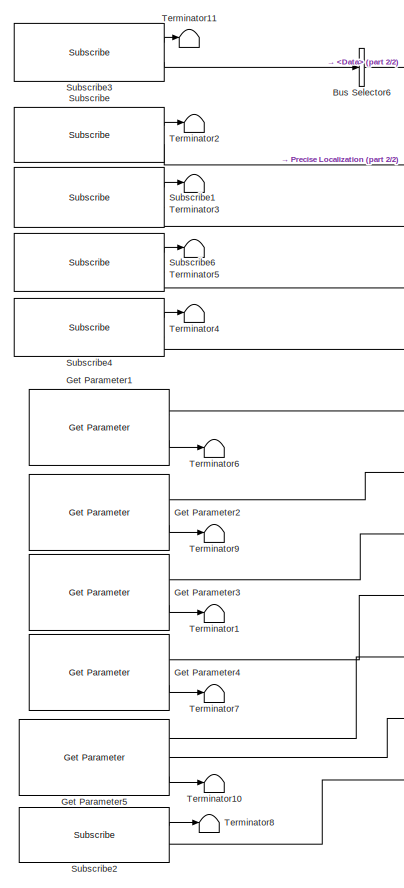
[diagram: root canvas - part 1/2, left side, full height]
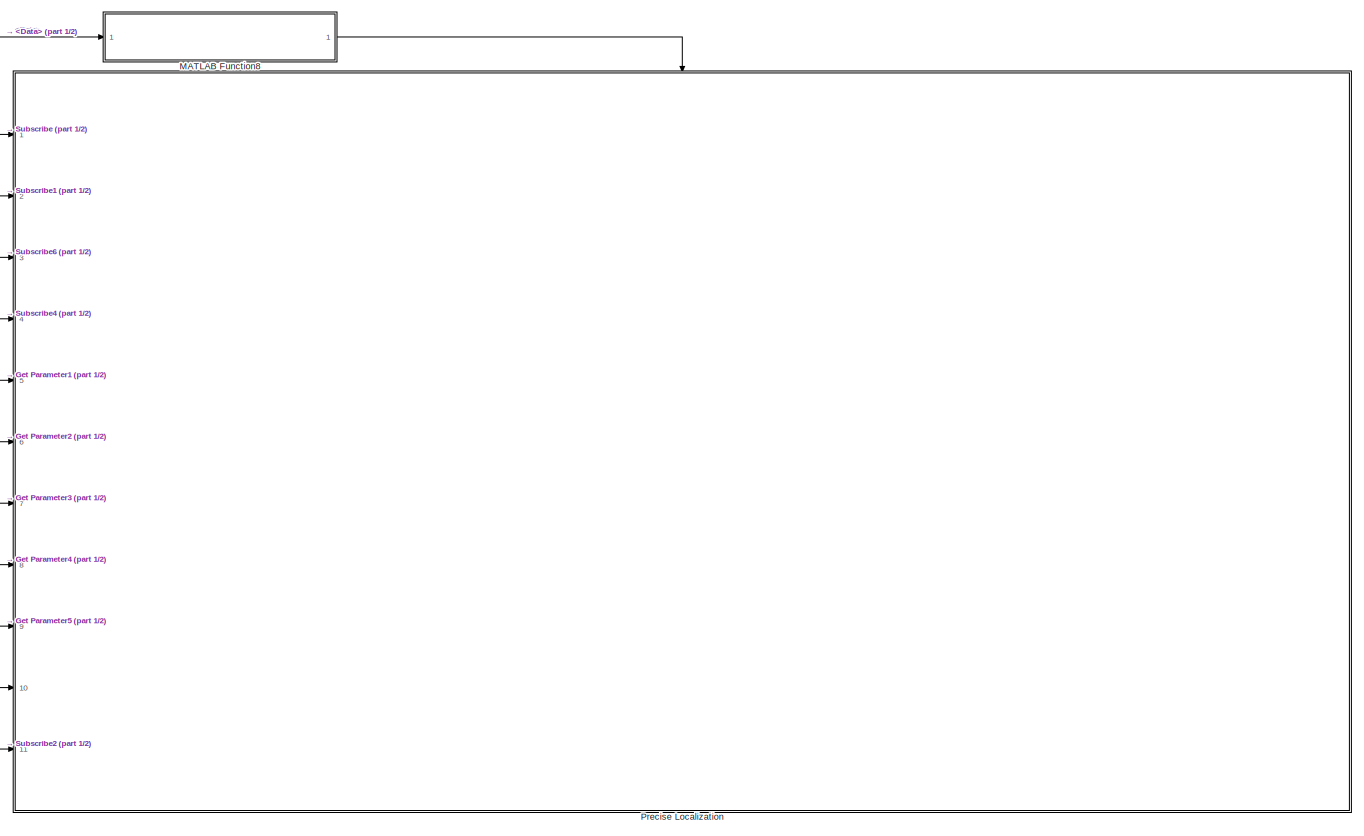
[diagram: root canvas - part 2/2, most of the canvas]
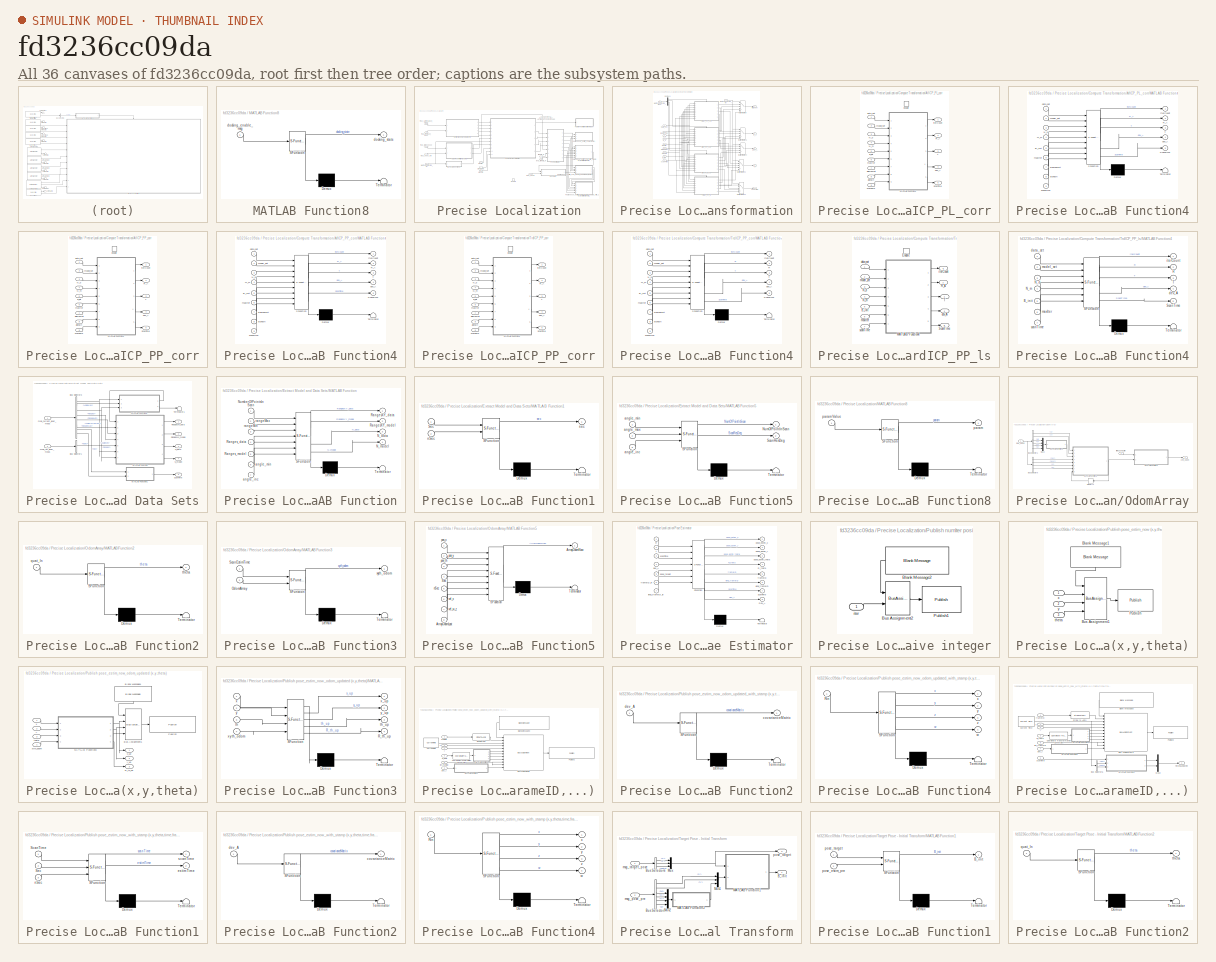
[diagram: thumbnail index - all 36 canvases of the model, root first then tree order]
MODEL slx_fd3236cc09da
KIND model
CONFIG AbsTol = auto
CONFIG EnableMultiTasking = off
CONFIG FixedStep = auto
CONFIG MaxStep = auto
CONFIG MinStep = auto
CONFIG RelTol = 1e-3
CONFIG SampleTimeConstraint = Unconstrained
CONFIG SolverName = FixedStepAuto
CONFIG StartTime = 0.0
CONFIG StopTime = inf
WORKSPACE source: mxarray member
WORKSPACE SL_ROS_VariableLengthArrays_MaxSizes: object (value not decoded)
BLOCK [BusSelector] Bus Selector6
  OutputSignals = Data
  Ports = [1, 1]
BLOCK [Reference] Get Parameter1  REF=robotlib/Get Parameter
  Ports = [0, 2]
  SourceBlock = robotlib/Get Parameter
  SourceProductBaseCode = RR
  SourceType = ROS Get Parameter
BLOCK [Reference] Get Parameter2  REF=robotlib/Get Parameter
  Ports = [0, 2]
  SourceBlock = robotlib/Get Parameter
  SourceProductBaseCode = RR
  SourceType = ROS Get Parameter
BLOCK [Reference] Get Parameter3  REF=robotlib/Get Parameter
  Ports = [0, 2]
  SourceBlock = robotlib/Get Parameter
  SourceProductBaseCode = RR
  SourceType = ROS Get Parameter
BLOCK [Reference] Get Parameter4  REF=robotlib/Get Parameter
  Ports = [0, 2]
  SourceBlock = robotlib/Get Parameter
  SourceProductBaseCode = RR
  SourceType = ROS Get Parameter
BLOCK [Reference] Get Parameter5  REF=robotlib/Get Parameter
  Ports = [0, 3]
  SourceBlock = robotlib/Get Parameter
  SourceProductBaseCode = RR
  SourceType = ROS Get Parameter
BLOCK [SubSystem] MATLAB Function8
  ErrorFcn = Stateflow.Translate.translate
  PermitHierarchicalResolution = ExplicitOnly
  Ports = [1, 1]
  RequestExecContextInheritance = off
  SFBlockType = MATLAB Function
  TreatAsAtomicUnit = on
BLOCK [Demux] MATLAB Function8/ Demux 
  Outputs = 1
  Ports = [1, 1]
BLOCK [S-Function] MATLAB Function8/ SFunction 
  EnableBusSupport = on
  FunctionName = sf_sfun
  PortCounts = [1 2]
  Ports = [1, 2]
  SFcnIsStateOwnerBlock = off
  SFunctionDeploymentMode = off
  Tag = Stateflow S-Function 21
BLOCK [Terminator] MATLAB Function8/ Terminator 
BLOCK [Inport] MATLAB Function8/docking_enable_msg
BLOCK [Outport] MATLAB Function8/docking_state
  VectorParamsAs1DForOutWhenUnconnected = off
BLOCK [SubSystem] Precise Localization
  Ports = [11, 0, 1]
  RequestExecContextInheritance = off
BLOCK [SubSystem] Precise Localization/Compute Transformation
  Ports = [11, 5]
  RequestExecContextInheritance = off
BLOCK [SubSystem] Precise Localization/Compute Transformation/AfICP_PL_corr
  Ports = [9, 5, 1]
  RequestExecContextInheritance = off
  TreatAsAtomicUnit = on
BLOCK [Inport] Precise Localization/Compute Transformation/AfICP_PL_corr/B_init
  Port = 5
BLOCK [EnablePort] Precise Localization/Compute Transformation/AfICP_PL_corr/Enable
  Ports = []
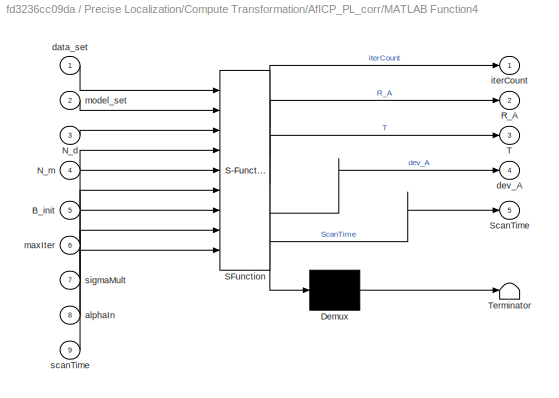
BLOCK [SubSystem] Precise Localization/Compute Transformation/AfICP_PL_corr/MATLAB Function4
  ErrorFcn = Stateflow.Translate.translate
  PermitHierarchicalResolution = ExplicitOnly
  Ports = [9, 5]
  RequestExecContextInheritance = off
  SFBlockType = MATLAB Function
  TreatAsAtomicUnit = on
BLOCK [Demux] Precise Localization/Compute Transformation/AfICP_PL_corr/MATLAB Function4/ Demux 
  Outputs = 1
  Ports = [1, 1]
BLOCK [S-Function] Precise Localization/Compute Transformation/AfICP_PL_corr/MATLAB Function4/ SFunction 
  EnableBusSupport = on
  FunctionName = sf_sfun
  PortCounts = [9 6]
  Ports = [9, 6]
  SFcnIsStateOwnerBlock = off
  SFunctionDeploymentMode = off
  Tag = Stateflow S-Function 10
BLOCK [Terminator] Precise Localization/Compute Transformation/AfICP_PL_corr/MATLAB Function4/ Terminator 
BLOCK [Inport] Precise Localization/Compute Transformation/AfICP_PL_corr/MATLAB Function4/B_init
  Port = 5
BLOCK [Inport] Precise Localization/Compute Transformation/AfICP_PL_corr/MATLAB Function4/N_d
  Port = 3
BLOCK [Inport] Precise Localization/Compute Transformation/AfICP_PL_corr/MATLAB Function4/N_m
  Port = 4
BLOCK [Outport] Precise Localization/Compute Transformation/AfICP_PL_corr/MATLAB Function4/R_A
  Port = 2
  VectorParamsAs1DForOutWhenUnconnected = off
BLOCK [Outport] Precise Localization/Compute Transformation/AfICP_PL_corr/MATLAB Function4/ScanTime
  Port = 5
BLOCK [Outport] Precise Localization/Compute Transformation/AfICP_PL_corr/MATLAB Function4/T
  Port = 3
  VectorParamsAs1DForOutWhenUnconnected = off
BLOCK [Inport] Precise Localization/Compute Transformation/AfICP_PL_corr/MATLAB Function4/alphaIn
  Port = 8
BLOCK [Inport] Precise Localization/Compute Transformation/AfICP_PL_corr/MATLAB Function4/data_set
BLOCK [Outport] Precise Localization/Compute Transformation/AfICP_PL_corr/MATLAB Function4/dev_A
  Port = 4
BLOCK [Outport] Precise Localization/Compute Transformation/AfICP_PL_corr/MATLAB Function4/iterCount
  VectorParamsAs1DForOutWhenUnconnected = off
BLOCK [Inport] Precise Localization/Compute Transformation/AfICP_PL_corr/MATLAB Function4/maxIter
  Port = 6
BLOCK [Inport] Precise Localization/Compute Transformation/AfICP_PL_corr/MATLAB Function4/model_set
  Port = 2
BLOCK [Inport] Precise Localization/Compute Transformation/AfICP_PL_corr/MATLAB Function4/scanTime
  Port = 9
BLOCK [Inport] Precise Localization/Compute Transformation/AfICP_PL_corr/MATLAB Function4/sigmaMult
  Port = 7
BLOCK [Inport] Precise Localization/Compute Transformation/AfICP_PL_corr/N_d
  Port = 3
BLOCK [Inport] Precise Localization/Compute Transformation/AfICP_PL_corr/N_m
  Port = 4
BLOCK [Outport] Precise Localization/Compute Transformation/AfICP_PL_corr/R_A
  Port = 2
BLOCK [Outport] Precise Localization/Compute Transformation/AfICP_PL_corr/ScanTime
  Port = 5
BLOCK [Inport] Precise Localization/Compute Transformation/AfICP_PL_corr/SigmaMult
  Port = 7
BLOCK [Outport] Precise Localization/Compute Transformation/AfICP_PL_corr/T
  Port = 3
BLOCK [Inport] Precise Localization/Compute Transformation/AfICP_PL_corr/alphaIn
  Port = 8
BLOCK [Inport] Precise Localization/Compute Transformation/AfICP_PL_corr/data_set
BLOCK [Outport] Precise Localization/Compute Transformation/AfICP_PL_corr/dev_A
  Port = 4
BLOCK [Outport] Precise Localization/Compute Transformation/AfICP_PL_corr/iterCount
BLOCK [Inport] Precise Localization/Compute Transformation/AfICP_PL_corr/maxIter
  Port = 6
BLOCK [Inport] Precise Localization/Compute Transformation/AfICP_PL_corr/model_set
  Port = 2
BLOCK [Inport] Precise Localization/Compute Transformation/AfICP_PL_corr/scanTime
  Port = 9
BLOCK [SubSystem] Precise Localization/Compute Transformation/AfICP_PP_corr
  Ports = [9, 5, 1]
  RequestExecContextInheritance = off
  TreatAsAtomicUnit = on
BLOCK [Inport] Precise Localization/Compute Transformation/AfICP_PP_corr/B_init
  Port = 5
BLOCK [EnablePort] Precise Localization/Compute Transformation/AfICP_PP_corr/Enable
  Ports = []
BLOCK [SubSystem] Precise Localization/Compute Transformation/AfICP_PP_corr/MATLAB Function4
  ErrorFcn = Stateflow.Translate.translate
  PermitHierarchicalResolution = ExplicitOnly
  Ports = [9, 5]
  RequestExecContextInheritance = off
  SFBlockType = MATLAB Function
  TreatAsAtomicUnit = on
BLOCK [Demux] Precise Localization/Compute Transformation/AfICP_PP_corr/MATLAB Function4/ Demux 
  Outputs = 1
  Ports = [1, 1]
BLOCK [S-Function] Precise Localization/Compute Transformation/AfICP_PP_corr/MATLAB Function4/ SFunction 
  EnableBusSupport = on
  FunctionName = sf_sfun
  PortCounts = [9 6]
  Ports = [9, 6]
  SFcnIsStateOwnerBlock = off
  SFunctionDeploymentMode = off
  Tag = Stateflow S-Function 7
BLOCK [Terminator] Precise Localization/Compute Transformation/AfICP_PP_corr/MATLAB Function4/ Terminator 
BLOCK [Inport] Precise Localization/Compute Transformation/AfICP_PP_corr/MATLAB Function4/B_init
  Port = 5
BLOCK [Inport] Precise Localization/Compute Transformation/AfICP_PP_corr/MATLAB Function4/N_d
  Port = 3
BLOCK [Inport] Precise Localization/Compute Transformation/AfICP_PP_corr/MATLAB Function4/N_m
  Port = 4
BLOCK [Outport] Precise Localization/Compute Transformation/AfICP_PP_corr/MATLAB Function4/R_A
  Port = 2
  VectorParamsAs1DForOutWhenUnconnected = off
BLOCK [Outport] Precise Localization/Compute Transformation/AfICP_PP_corr/MATLAB Function4/ScanTime
  Port = 5
BLOCK [Outport] Precise Localization/Compute Transformation/AfICP_PP_corr/MATLAB Function4/T
  Port = 3
  VectorParamsAs1DForOutWhenUnconnected = off
BLOCK [Inport] Precise Localization/Compute Transformation/AfICP_PP_corr/MATLAB Function4/alphaIn
  Port = 8
BLOCK [Inport] Precise Localization/Compute Transformation/AfICP_PP_corr/MATLAB Function4/data_set
BLOCK [Outport] Precise Localization/Compute Transformation/AfICP_PP_corr/MATLAB Function4/dev_A
  Port = 4
BLOCK [Outport] Precise Localization/Compute Transformation/AfICP_PP_corr/MATLAB Function4/iterCount
  VectorParamsAs1DForOutWhenUnconnected = off
BLOCK [Inport] Precise Localization/Compute Transformation/AfICP_PP_corr/MATLAB Function4/maxIter
  Port = 6
BLOCK [Inport] Precise Localization/Compute Transformation/AfICP_PP_corr/MATLAB Function4/model_set
  Port = 2
BLOCK [Inport] Precise Localization/Compute Transformation/AfICP_PP_corr/MATLAB Function4/scanTime
  Port = 9
BLOCK [Inport] Precise Localization/Compute Transformation/AfICP_PP_corr/MATLAB Function4/sigmaMult
  Port = 7
BLOCK [Inport] Precise Localization/Compute Transformation/AfICP_PP_corr/N_d
  Port = 3
BLOCK [Inport] Precise Localization/Compute Transformation/AfICP_PP_corr/N_m
  Port = 4
BLOCK [Outport] Precise Localization/Compute Transformation/AfICP_PP_corr/R_A
  Port = 2
BLOCK [Outport] Precise Localization/Compute Transformation/AfICP_PP_corr/ScanTime
  Port = 5
BLOCK [Inport] Precise Localization/Compute Transformation/AfICP_PP_corr/SigmaMult
  Port = 7
BLOCK [Outport] Precise Localization/Compute Transformation/AfICP_PP_corr/T
  Port = 3
BLOCK [Inport] Precise Localization/Compute Transformation/AfICP_PP_corr/alphaIn
  Port = 8
BLOCK [Inport] Precise Localization/Compute Transformation/AfICP_PP_corr/data_set
BLOCK [Outport] Precise Localization/Compute Transformation/AfICP_PP_corr/dev_A
  Port = 4
BLOCK [Outport] Precise Localization/Compute Transformation/AfICP_PP_corr/iterCount
BLOCK [Inport] Precise Localization/Compute Transformation/AfICP_PP_corr/maxIter
  Port = 6
BLOCK [Inport] Precise Localization/Compute Transformation/AfICP_PP_corr/model_set
  Port = 2
BLOCK [Inport] Precise Localization/Compute Transformation/AfICP_PP_corr/scanTime
  Port = 9
BLOCK [Inport] Precise Localization/Compute Transformation/B_init
  Port = 6
BLOCK [Demux] Precise Localization/Compute Transformation/Demux1
  Ports = [1, 4]
BLOCK [Inport] Precise Localization/Compute Transformation/MethodSelected_Bool
  Port = 8
BLOCK [Inport] Precise Localization/Compute Transformation/MethodSelected_Int
  Port = 7
BLOCK [MultiPortSwitch] Precise Localization/Compute Transformation/Multiport Switch
  InputSameDT = off
  Inputs = 4
  Ports = [5, 1]
  SaturateOnIntegerOverflow = off
BLOCK [MultiPortSwitch] Precise Localization/Compute Transformation/Multiport Switch1
  InputSameDT = off
  Inputs = 4
  Ports = [5, 1]
  SaturateOnIntegerOverflow = off
BLOCK [MultiPortSwitch] Precise Localization/Compute Transformation/Multiport Switch2
  InputSameDT = off
  Inputs = 4
  Ports = [5, 1]
  SaturateOnIntegerOverflow = off
BLOCK [MultiPortSwitch] Precise Localization/Compute Transformation/Multiport Switch3
  InputSameDT = off
  Inputs = 4
  Ports = [5, 1]
  SaturateOnIntegerOverflow = off
BLOCK [MultiPortSwitch] Precise Localization/Compute Transformation/Multiport Switch4
  InputSameDT = off
  Inputs = 4
  Ports = [5, 1]
  SaturateOnIntegerOverflow = off
BLOCK [Inport] Precise Localization/Compute Transformation/N_d
  Port = 3
BLOCK [Inport] Precise Localization/Compute Transformation/N_m
  Port = 4
BLOCK [Outport] Precise Localization/Compute Transformation/R_A
  Port = 2
BLOCK [Outport] Precise Localization/Compute Transformation/ScanTime
  Port = 4
BLOCK [Inport] Precise Localization/Compute Transformation/SigmaMult
  Port = 10
BLOCK [Outport] Precise Localization/Compute Transformation/T
  Port = 3
BLOCK [SubSystem] Precise Localization/Compute Transformation/TrdICP_PP_corr
  Ports = [9, 5, 1]
  RequestExecContextInheritance = off
  TreatAsAtomicUnit = on
BLOCK [Inport] Precise Localization/Compute Transformation/TrdICP_PP_corr/B_init
  Port = 5
BLOCK [EnablePort] Precise Localization/Compute Transformation/TrdICP_PP_corr/Enable
  Ports = []
BLOCK [SubSystem] Precise Localization/Compute Transformation/TrdICP_PP_corr/MATLAB Function4
  ErrorFcn = Stateflow.Translate.translate
  PermitHierarchicalResolution = ExplicitOnly
  Ports = [9, 5]
  RequestExecContextInheritance = off
  SFBlockType = MATLAB Function
  TreatAsAtomicUnit = on
BLOCK [Demux] Precise Localization/Compute Transformation/TrdICP_PP_corr/MATLAB Function4/ Demux 
  Outputs = 1
  Ports = [1, 1]
BLOCK [S-Function] Precise Localization/Compute Transformation/TrdICP_PP_corr/MATLAB Function4/ SFunction 
  EnableBusSupport = on
  FunctionName = sf_sfun
  PortCounts = [9 6]
  Ports = [9, 6]
  SFcnIsStateOwnerBlock = off
  SFunctionDeploymentMode = off
  Tag = Stateflow S-Function 12
BLOCK [Terminator] Precise Localization/Compute Transformation/TrdICP_PP_corr/MATLAB Function4/ Terminator 
BLOCK [Inport] Precise Localization/Compute Transformation/TrdICP_PP_corr/MATLAB Function4/B_init
  Port = 5
BLOCK [Inport] Precise Localization/Compute Transformation/TrdICP_PP_corr/MATLAB Function4/N_d
  Port = 3
BLOCK [Inport] Precise Localization/Compute Transformation/TrdICP_PP_corr/MATLAB Function4/N_m
  Port = 4
BLOCK [Outport] Precise Localization/Compute Transformation/TrdICP_PP_corr/MATLAB Function4/R
  Port = 2
  VectorParamsAs1DForOutWhenUnconnected = off
BLOCK [Outport] Precise Localization/Compute Transformation/TrdICP_PP_corr/MATLAB Function4/ScanTime
  Port = 5
BLOCK [Outport] Precise Localization/Compute Transformation/TrdICP_PP_corr/MATLAB Function4/T
  Port = 3
  VectorParamsAs1DForOutWhenUnconnected = off
BLOCK [Inport] Precise Localization/Compute Transformation/TrdICP_PP_corr/MATLAB Function4/alphaIn
  Port = 8
BLOCK [Inport] Precise Localization/Compute Transformation/TrdICP_PP_corr/MATLAB Function4/data_set
BLOCK [Outport] Precise Localization/Compute Transformation/TrdICP_PP_corr/MATLAB Function4/dev_A
  Port = 4
BLOCK [Outport] Precise Localization/Compute Transformation/TrdICP_PP_corr/MATLAB Function4/iterCount
  VectorParamsAs1DForOutWhenUnconnected = off
BLOCK [Inport] Precise Localization/Compute Transformation/TrdICP_PP_corr/MATLAB Function4/maxIter
  Port = 6
BLOCK [Inport] Precise Localization/Compute Transformation/TrdICP_PP_corr/MATLAB Function4/model_set
  Port = 2
BLOCK [Inport] Precise Localization/Compute Transformation/TrdICP_PP_corr/MATLAB Function4/scanTime
  Port = 9
BLOCK [Inport] Precise Localization/Compute Transformation/TrdICP_PP_corr/MATLAB Function4/sigmaMult
  Port = 7
BLOCK [Inport] Precise Localization/Compute Transformation/TrdICP_PP_corr/N_d
  Port = 3
BLOCK [Inport] Precise Localization/Compute Transformation/TrdICP_PP_corr/N_m
  Port = 4
BLOCK [Outport] Precise Localization/Compute Transformation/TrdICP_PP_corr/R_A
  Port = 2
BLOCK [Outport] Precise Localization/Compute Transformation/TrdICP_PP_corr/ScanTime
  Port = 5
BLOCK [Inport] Precise Localization/Compute Transformation/TrdICP_PP_corr/SigmaMult
  Port = 7
BLOCK [Outport] Precise Localization/Compute Transformation/TrdICP_PP_corr/T
  Port = 3
BLOCK [Inport] Precise Localization/Compute Transformation/TrdICP_PP_corr/alphaIn
  Port = 8
BLOCK [Inport] Precise Localization/Compute Transformation/TrdICP_PP_corr/data_set
BLOCK [Outport] Precise Localization/Compute Transformation/TrdICP_PP_corr/dev_A
  Port = 4
BLOCK [Outport] Precise Localization/Compute Transformation/TrdICP_PP_corr/iterCount
BLOCK [Inport] Precise Localization/Compute Transformation/TrdICP_PP_corr/maxIter
  Port = 6
BLOCK [Inport] Precise Localization/Compute Transformation/TrdICP_PP_corr/model_set
  Port = 2
BLOCK [Inport] Precise Localization/Compute Transformation/TrdICP_PP_corr/scanTime
  Port = 9
BLOCK [SubSystem] Precise Localization/Compute Transformation/TrdICP_PP_ls
  Ports = [7, 5, 1]
  RequestExecContextInheritance = off
  TreatAsAtomicUnit = on
BLOCK [Inport] Precise Localization/Compute Transformation/TrdICP_PP_ls/B_init
  Port = 5
BLOCK [EnablePort] Precise Localization/Compute Transformation/TrdICP_PP_ls/Enable
  Ports = []
BLOCK [SubSystem] Precise Localization/Compute Transformation/TrdICP_PP_ls/MATLAB Function4
  ErrorFcn = Stateflow.Translate.translate
  PermitHierarchicalResolution = ExplicitOnly
  Ports = [7, 5]
  RequestExecContextInheritance = off
  SFBlockType = MATLAB Function
  TreatAsAtomicUnit = on
BLOCK [Demux] Precise Localization/Compute Transformation/TrdICP_PP_ls/MATLAB Function4/ Demux 
  Outputs = 1
  Ports = [1, 1]
BLOCK [S-Function] Precise Localization/Compute Transformation/TrdICP_PP_ls/MATLAB Function4/ SFunction 
  EnableBusSupport = on
  FunctionName = sf_sfun
  PortCounts = [7 6]
  Ports = [7, 6]
  SFcnIsStateOwnerBlock = off
  SFunctionDeploymentMode = off
  Tag = Stateflow S-Function 11
BLOCK [Terminator] Precise Localization/Compute Transformation/TrdICP_PP_ls/MATLAB Function4/ Terminator 
BLOCK [Inport] Precise Localization/Compute Transformation/TrdICP_PP_ls/MATLAB Function4/B_init
  Port = 5
BLOCK [Inport] Precise Localization/Compute Transformation/TrdICP_PP_ls/MATLAB Function4/N_d
  Port = 3
BLOCK [Inport] Precise Localization/Compute Transformation/TrdICP_PP_ls/MATLAB Function4/N_m
  Port = 4
BLOCK [Outport] Precise Localization/Compute Transformation/TrdICP_PP_ls/MATLAB Function4/R
  Port = 2
  VectorParamsAs1DForOutWhenUnconnected = off
BLOCK [Outport] Precise Localization/Compute Transformation/TrdICP_PP_ls/MATLAB Function4/ScanTime
  Port = 5
BLOCK [Outport] Precise Localization/Compute Transformation/TrdICP_PP_ls/MATLAB Function4/T
  Port = 3
  VectorParamsAs1DForOutWhenUnconnected = off
BLOCK [Inport] Precise Localization/Compute Transformation/TrdICP_PP_ls/MATLAB Function4/data_set
BLOCK [Outport] Precise Localization/Compute Transformation/TrdICP_PP_ls/MATLAB Function4/dev_A
  Port = 4
BLOCK [Outport] Precise Localization/Compute Transformation/TrdICP_PP_ls/MATLAB Function4/iterCount
  VectorParamsAs1DForOutWhenUnconnected = off
BLOCK [Inport] Precise Localization/Compute Transformation/TrdICP_PP_ls/MATLAB Function4/maxIter
  Port = 6
BLOCK [Inport] Precise Localization/Compute Transformation/TrdICP_PP_ls/MATLAB Function4/model_set
  Port = 2
BLOCK [Inport] Precise Localization/Compute Transformation/TrdICP_PP_ls/MATLAB Function4/scanTime
  Port = 7
BLOCK [Inport] Precise Localization/Compute Transformation/TrdICP_PP_ls/N_d
  Port = 3
BLOCK [Inport] Precise Localization/Compute Transformation/TrdICP_PP_ls/N_m
  Port = 4
BLOCK [Outport] Precise Localization/Compute Transformation/TrdICP_PP_ls/R_A
  Port = 2
BLOCK [Outport] Precise Localization/Compute Transformation/TrdICP_PP_ls/ScanTime
  Port = 5
BLOCK [Outport] Precise Localization/Compute Transformation/TrdICP_PP_ls/T
  Port = 3
BLOCK [Inport] Precise Localization/Compute Transformation/TrdICP_PP_ls/data_set
BLOCK [Outport] Precise Localization/Compute Transformation/TrdICP_PP_ls/dev_A
  Port = 4
BLOCK [Outport] Precise Localization/Compute Transformation/TrdICP_PP_ls/iterCount
BLOCK [Inport] Precise Localization/Compute Transformation/TrdICP_PP_ls/maxIter
  Port = 6
BLOCK [Inport] Precise Localization/Compute Transformation/TrdICP_PP_ls/model_set
  Port = 2
BLOCK [Inport] Precise Localization/Compute Transformation/TrdICP_PP_ls/scanTime
  Port = 7
BLOCK [Inport] Precise Localization/Compute Transformation/alphaIn
  Port = 11
BLOCK [Inport] Precise Localization/Compute Transformation/data_set
BLOCK [Outport] Precise Localization/Compute Transformation/dev_A
  Port = 5
BLOCK [Outport] Precise Localization/Compute Transformation/iterCount
BLOCK [Inport] Precise Localization/Compute Transformation/maxIter
  Port = 9
BLOCK [Inport] Precise Localization/Compute Transformation/model_set
  Port = 2
BLOCK [Inport] Precise Localization/Compute Transformation/scanTime
  Port = 5
BLOCK [EnablePort] Precise Localization/Enable
  Ports = []
  PropagateVarSize = During execution
BLOCK [SubSystem] Precise Localization/Extract Model and Data Sets
  Ports = [2, 5]
  RequestExecContextInheritance = off
BLOCK [BusSelector] Precise Localization/Extract Model and Data Sets/Bus Selector1
  NameLocation = top
  OutputSignals = Ranges
  Ports = [1, 1]
BLOCK [BusSelector] Precise Localization/Extract Model and Data Sets/Bus Selector3
  NameLocation = top
  OutputSignals = AngleMin,AngleMax,AngleIncrement,Ranges,RangeMin,RangeMax,Header.Stamp.Sec,Header.Stamp.Nsec
  Ports = [1, 8]
BLOCK [SubSystem] Precise Localization/Extract Model and Data Sets/MATLAB Function
  ErrorFcn = Stateflow.Translate.translate
  PermitHierarchicalResolution = ExplicitOnly
  Ports = [7, 4]
  RequestExecContextInheritance = off
  SFBlockType = MATLAB Function
  TreatAsAtomicUnit = on
BLOCK [Demux] Precise Localization/Extract Model and Data Sets/MATLAB Function/ Demux 
  Outputs = 1
  Ports = [1, 1]
BLOCK [S-Function] Precise Localization/Extract Model and Data Sets/MATLAB Function/ SFunction 
  EnableBusSupport = on
  FunctionName = sf_sfun
  PortCounts = [7 5]
  Ports = [7, 5]
  SFcnIsStateOwnerBlock = off
  SFunctionDeploymentMode = off
  Tag = Stateflow S-Function 2
BLOCK [Terminator] Precise Localization/Extract Model and Data Sets/MATLAB Function/ Terminator 
BLOCK [Outport] Precise Localization/Extract Model and Data Sets/MATLAB Function/N_data
  Port = 3
BLOCK [Outport] Precise Localization/Extract Model and Data Sets/MATLAB Function/N_model
  Port = 4
BLOCK [Inport] Precise Localization/Extract Model and Data Sets/MATLAB Function/NumberOfPointsInScan
BLOCK [Outport] Precise Localization/Extract Model and Data Sets/MATLAB Function/RangesXY_data
  VectorParamsAs1DForOutWhenUnconnected = off
BLOCK [Outport] Precise Localization/Extract Model and Data Sets/MATLAB Function/RangesXY_model
  Port = 2
BLOCK [Inport] Precise Localization/Extract Model and Data Sets/MATLAB Function/Ranges_data
  Port = 4
BLOCK [Inport] Precise Localization/Extract Model and Data Sets/MATLAB Function/Ranges_model
  Port = 5
BLOCK [Inport] Precise Localization/Extract Model and Data Sets/MATLAB Function/angle_inc
  Port = 7
BLOCK [Inport] Precise Localization/Extract Model and Data Sets/MATLAB Function/angle_min
  Port = 6
BLOCK [Inport] Precise Localization/Extract Model and Data Sets/MATLAB Function/rangeMax
  Port = 2
BLOCK [Inport] Precise Localization/Extract Model and Data Sets/MATLAB Function/rangeMin
  Port = 3
BLOCK [SubSystem] Precise Localization/Extract Model and Data Sets/MATLAB Function1
  ErrorFcn = Stateflow.Translate.translate
  PermitHierarchicalResolution = ExplicitOnly
  Ports = [2, 1]
  RequestExecContextInheritance = off
  SFBlockType = MATLAB Function
  TreatAsAtomicUnit = on
BLOCK [Demux] Precise Localization/Extract Model and Data Sets/MATLAB Function1/ Demux 
  Outputs = 1
  Ports = [1, 1]
BLOCK [S-Function] Precise Localization/Extract Model and Data Sets/MATLAB Function1/ SFunction 
  EnableBusSupport = on
  FunctionName = sf_sfun
  PortCounts = [2 2]
  Ports = [2, 2]
  SFcnIsStateOwnerBlock = off
  SFunctionDeploymentMode = off
  Tag = Stateflow S-Function 15
BLOCK [Terminator] Precise Localization/Extract Model and Data Sets/MATLAB Function1/ Terminator 
BLOCK [Inport] Precise Localization/Extract Model and Data Sets/MATLAB Function1/Sec
BLOCK [Inport] Precise Localization/Extract Model and Data Sets/MATLAB Function1/nSec
  Port = 2
BLOCK [Outport] Precise Localization/Extract Model and Data Sets/MATLAB Function1/sec
  VectorParamsAs1DForOutWhenUnconnected = off
BLOCK [SubSystem] Precise Localization/Extract Model and Data Sets/MATLAB Function5
  ErrorFcn = Stateflow.Translate.translate
  PermitHierarchicalResolution = ExplicitOnly
  Ports = [3, 2]
  RequestExecContextInheritance = off
  SFBlockType = MATLAB Function
  TreatAsAtomicUnit = on
BLOCK [Demux] Precise Localization/Extract Model and Data Sets/MATLAB Function5/ Demux 
  Outputs = 1
  Ports = [1, 1]
BLOCK [S-Function] Precise Localization/Extract Model and Data Sets/MATLAB Function5/ SFunction 
  EnableBusSupport = on
  FunctionName = sf_sfun
  PortCounts = [3 3]
  Ports = [3, 3]
  SFcnIsStateOwnerBlock = off
  SFunctionDeploymentMode = off
  Tag = Stateflow S-Function 6
BLOCK [Terminator] Precise Localization/Extract Model and Data Sets/MATLAB Function5/ Terminator 
BLOCK [Outport] Precise Localization/Extract Model and Data Sets/MATLAB Function5/NumOfPointInScan
  VectorParamsAs1DForOutWhenUnconnected = off
BLOCK [Outport] Precise Localization/Extract Model and Data Sets/MATLAB Function5/ScanResDeg
  Port = 2
  VectorParamsAs1DForOutWhenUnconnected = off
BLOCK [Inport] Precise Localization/Extract Model and Data Sets/MATLAB Function5/angle_inc
  Port = 3
BLOCK [Inport] Precise Localization/Extract Model and Data Sets/MATLAB Function5/angle_max
  Port = 2
BLOCK [Inport] Precise Localization/Extract Model and Data Sets/MATLAB Function5/angle_min
BLOCK [Outport] Precise Localization/Extract Model and Data Sets/N_data
  Port = 3
BLOCK [Outport] Precise Localization/Extract Model and Data Sets/N_model
  Port = 4
BLOCK [Outport] Precise Localization/Extract Model and Data Sets/RangesXY_data
BLOCK [Outport] Precise Localization/Extract Model and Data Sets/RangesXY_model
  Port = 2
BLOCK [Outport] Precise Localization/Extract Model and Data Sets/ScanTime
  Port = 5
BLOCK [Terminator] Precise Localization/Extract Model and Data Sets/Terminator1
BLOCK [Inport] Precise Localization/Extract Model and Data Sets/msg_current_laser_meas
BLOCK [Inport] Precise Localization/Extract Model and Data Sets/msg_ref_laser_meas
  Port = 2
BLOCK [SubSystem] Precise Localization/MATLAB Function8
  ErrorFcn = Stateflow.Translate.translate
  PermitHierarchicalResolution = ExplicitOnly
  Ports = [1, 1]
  RequestExecContextInheritance = off
  SFBlockType = MATLAB Function
  TreatAsAtomicUnit = on
BLOCK [Demux] Precise Localization/MATLAB Function8/ Demux 
  Outputs = 1
  Ports = [1, 1]
BLOCK [S-Function] Precise Localization/MATLAB Function8/ SFunction 
  EnableBusSupport = on
  FunctionName = sf_sfun
  PortCounts = [1 2]
  Ports = [1, 2]
  SFcnIsStateOwnerBlock = off
  SFunctionDeploymentMode = off
  Tag = Stateflow S-Function 9
BLOCK [Terminator] Precise Localization/MATLAB Function8/ Terminator 
BLOCK [Outport] Precise Localization/MATLAB Function8/param
  VectorParamsAs1DForOutWhenUnconnected = off
BLOCK [Inport] Precise Localization/MATLAB Function8/paramValue
BLOCK [Inport] Precise Localization/MethodSelected_Int
  Port = 5
BLOCK [SubSystem] Precise Localization/OdomArray
  Ports = [2, 1]
  RequestExecContextInheritance = off
BLOCK [BusSelector] Precise Localization/OdomArray/Bus Selector1
  OutputSignals = Pose.Pose.Position.X,Pose.Pose.Position.Y,Pose.Pose.Orientation.W,Pose.Pose.Orientation.X,Pose.Pose.Orientation.Y,Pose.Pose.Orientation.Z
  Ports = [1, 6]
BLOCK [BusSelector] Precise Localization/OdomArray/Bus Selector6
  OutputSignals = Header.Stamp.Sec,Header.Stamp.Nsec,Twist.Twist.Linear.X,Twist.Twist.Angular.Z
  Ports = [1, 4]
BLOCK [SubSystem] Precise Localization/OdomArray/MATLAB Function2
  ErrorFcn = Stateflow.Translate.translate
  PermitHierarchicalResolution = ExplicitOnly
  Ports = [1, 1]
  RequestExecContextInheritance = off
  SFBlockType = MATLAB Function
  TreatAsAtomicUnit = on
BLOCK [Demux] Precise Localization/OdomArray/MATLAB Function2/ Demux 
  Outputs = 1
  Ports = [1, 1]
BLOCK [S-Function] Precise Localization/OdomArray/MATLAB Function2/ SFunction 
  EnableBusSupport = on
  FunctionName = sf_sfun
  PortCounts = [1 2]
  Ports = [1, 2]
  SFcnIsStateOwnerBlock = off
  SFunctionDeploymentMode = off
  Tag = Stateflow S-Function 8
BLOCK [Terminator] Precise Localization/OdomArray/MATLAB Function2/ Terminator 
BLOCK [Inport] Precise Localization/OdomArray/MATLAB Function2/quat_In
BLOCK [Outport] Precise Localization/OdomArray/MATLAB Function2/theta
  VectorParamsAs1DForOutWhenUnconnected = off
BLOCK [SubSystem] Precise Localization/OdomArray/MATLAB Function3
  ErrorFcn = Stateflow.Translate.translate
  PermitHierarchicalResolution = ExplicitOnly
  Ports = [2, 1]
  RequestExecContextInheritance = off
  SFBlockType = MATLAB Function
  TreatAsAtomicUnit = on
BLOCK [Demux] Precise Localization/OdomArray/MATLAB Function3/ Demux 
  Outputs = 1
  Ports = [1, 1]
BLOCK [S-Function] Precise Localization/OdomArray/MATLAB Function3/ SFunction 
  EnableBusSupport = on
  FunctionName = sf_sfun
  PortCounts = [2 2]
  Ports = [2, 2]
  SFcnIsStateOwnerBlock = off
  SFunctionDeploymentMode = off
  Tag = Stateflow S-Function 13
BLOCK [Terminator] Precise Localization/OdomArray/MATLAB Function3/ Terminator 
BLOCK [Inport] Precise Localization/OdomArray/MATLAB Function3/OdomArray
  Port = 2
BLOCK [Inport] Precise Localization/OdomArray/MATLAB Function3/ScanEstimTime
BLOCK [Outport] Precise Localization/OdomArray/MATLAB Function3/xyth_odom
BLOCK [SubSystem] Precise Localization/OdomArray/MATLAB Function5
  ErrorFcn = Stateflow.Translate.translate
  PermitHierarchicalResolution = ExplicitOnly
  Ports = [8, 1]
  RequestExecContextInheritance = off
  SFBlockType = MATLAB Function
  TreatAsAtomicUnit = on
BLOCK [Demux] Precise Localization/OdomArray/MATLAB Function5/ Demux 
  Outputs = 1
  Ports = [1, 1]
BLOCK [S-Function] Precise Localization/OdomArray/MATLAB Function5/ SFunction 
  EnableBusSupport = on
  FunctionName = sf_sfun
  PortCounts = [8 2]
  Ports = [8, 2]
  SFcnIsStateOwnerBlock = off
  SFunctionDeploymentMode = off
  Tag = Stateflow S-Function 20
BLOCK [Terminator] Precise Localization/OdomArray/MATLAB Function5/ Terminator 
BLOCK [Inport] Precise Localization/OdomArray/MATLAB Function5/ArrayOdomLast
  Port = 8
BLOCK [Outport] Precise Localization/OdomArray/MATLAB Function5/ArrayOdomNow
BLOCK [Inport] Precise Localization/OdomArray/MATLAB Function5/Sec
  Port = 4
BLOCK [Inport] Precise Localization/OdomArray/MATLAB Function5/nSec
  Port = 5
BLOCK [Inport] Precise Localization/OdomArray/MATLAB Function5/pos_th
  Port = 3
BLOCK [Inport] Precise Localization/OdomArray/MATLAB Function5/pos_x
BLOCK [Inport] Precise Localization/OdomArray/MATLAB Function5/pos_y
  Port = 2
BLOCK [Inport] Precise Localization/OdomArray/MATLAB Function5/vel_w_z
  Port = 7
BLOCK [Inport] Precise Localization/OdomArray/MATLAB Function5/vel_x
  Port = 6
BLOCK [Memory] Precise Localization/OdomArray/Memory4
  InitialCondition = zeros(50,6)
  NameLocation = top
BLOCK [Mux] Precise Localization/OdomArray/Mux2
  DisplayOption = bar
  Ports = [4, 1]
BLOCK [Inport] Precise Localization/OdomArray/msg_odom
  Port = 2
BLOCK [Inport] Precise Localization/OdomArray/timeScanEstim
BLOCK [Outport] Precise Localization/OdomArray/xyth_odom
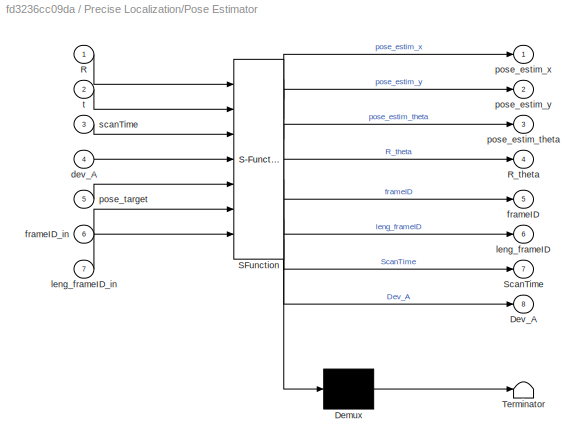
BLOCK [SubSystem] Precise Localization/Pose Estimator
  ErrorFcn = Stateflow.Translate.translate
  PermitHierarchicalResolution = ExplicitOnly
  Ports = [7, 8]
  RequestExecContextInheritance = off
  SFBlockType = MATLAB Function
  TreatAsAtomicUnit = on
BLOCK [Demux] Precise Localization/Pose Estimator/ Demux 
  Outputs = 1
  Ports = [1, 1]
BLOCK [S-Function] Precise Localization/Pose Estimator/ SFunction 
  EnableBusSupport = on
  FunctionName = sf_sfun
  PortCounts = [7 9]
  Ports = [7, 9]
  SFcnIsStateOwnerBlock = off
  SFunctionDeploymentMode = off
  Tag = Stateflow S-Function 4
BLOCK [Terminator] Precise Localization/Pose Estimator/ Terminator 
BLOCK [Outport] Precise Localization/Pose Estimator/Dev_A
  Port = 8
BLOCK [Inport] Precise Localization/Pose Estimator/R
BLOCK [Outport] Precise Localization/Pose Estimator/R_theta
  Port = 4
BLOCK [Outport] Precise Localization/Pose Estimator/ScanTime
  Port = 7
BLOCK [Inport] Precise Localization/Pose Estimator/dev_A
  Port = 4
BLOCK [Outport] Precise Localization/Pose Estimator/frameID
  Port = 5
BLOCK [Inport] Precise Localization/Pose Estimator/frameID_in
  Port = 6
BLOCK [Outport] Precise Localization/Pose Estimator/leng_frameID
  Port = 6
BLOCK [Inport] Precise Localization/Pose Estimator/leng_frameID_in
  Port = 7
BLOCK [Outport] Precise Localization/Pose Estimator/pose_estim_theta
  Port = 3
  VectorParamsAs1DForOutWhenUnconnected = off
BLOCK [Outport] Precise Localization/Pose Estimator/pose_estim_x
  VectorParamsAs1DForOutWhenUnconnected = off
BLOCK [Outport] Precise Localization/Pose Estimator/pose_estim_y
  Port = 2
  VectorParamsAs1DForOutWhenUnconnected = off
BLOCK [Inport] Precise Localization/Pose Estimator/pose_target
  Port = 5
BLOCK [Inport] Precise Localization/Pose Estimator/scanTime
  Port = 3
BLOCK [Inport] Precise Localization/Pose Estimator/t
  Port = 2
BLOCK [SubSystem] Precise Localization/Publish numIter positive integer
  Ports = [1]
  RequestExecContextInheritance = off
BLOCK [Reference] Precise Localization/Publish numIter positive integer/Blank Message2  REF=robotlib/Blank Message
  NameLocation = top
  Ports = [0, 1]
  SourceBlock = robotlib/Blank Message
  SourceProductBaseCode = RO
  SourceType = ROS Blank Message
BLOCK [BusAssignment] Precise Localization/Publish numIter positive integer/Bus Assignment2
  AssignedSignals = Data
  Ports = [2, 1]
BLOCK [Reference] Precise Localization/Publish numIter positive integer/Publish1  REF=robotlib/Publish
  Ports = [1]
  SourceBlock = robotlib/Publish
  SourceProductBaseCode = RO
  SourceType = ROS Publish
BLOCK [Inport] Precise Localization/Publish numIter positive integer/iter
BLOCK [SubSystem] Precise Localization/Publish pose_estim_now (x,y,theta)
  Ports = [3]
  RequestExecContextInheritance = off
BLOCK [Reference] Precise Localization/Publish pose_estim_now (x,y,theta)/Blank Message1  REF=robotlib/Blank Message
  NameLocation = left
  Ports = [0, 1]
  SourceBlock = robotlib/Blank Message
  SourceProductBaseCode = RO
  SourceType = ROS Blank Message
BLOCK [BusAssignment] Precise Localization/Publish pose_estim_now (x,y,theta)/Bus Assignment1
  AssignedSignals = X,Y,Theta
  Ports = [4, 1]
BLOCK [Reference] Precise Localization/Publish pose_estim_now (x,y,theta)/Publish  REF=robotlib/Publish
  Ports = [1]
  SourceBlock = robotlib/Publish
  SourceProductBaseCode = RO
  SourceType = ROS Publish
BLOCK [Inport] Precise Localization/Publish pose_estim_now (x,y,theta)/theta
  Port = 3
BLOCK [Inport] Precise Localization/Publish pose_estim_now (x,y,theta)/x
BLOCK [Inport] Precise Localization/Publish pose_estim_now (x,y,theta)/y
  Port = 2
BLOCK [SubSystem] Precise Localization/Publish pose_estim_now_odom_updated (x,y,theta)
  Ports = [4, 3]
  RequestExecContextInheritance = off
BLOCK [Reference] Precise Localization/Publish pose_estim_now_odom_updated (x,y,theta)/Blank Message1  REF=robotlib/Blank Message
  NameLocation = left
  Ports = [0, 1]
  SourceBlock = robotlib/Blank Message
  SourceProductBaseCode = RO
  SourceType = ROS Blank Message
BLOCK [BusAssignment] Precise Localization/Publish pose_estim_now_odom_updated (x,y,theta)/Bus Assignment1
  AssignedSignals = X,Y,Theta
  Ports = [4, 1]
BLOCK [SubSystem] Precise Localization/Publish pose_estim_now_odom_updated (x,y,theta)/MATLAB Function3
  ErrorFcn = Stateflow.Translate.translate
  PermitHierarchicalResolution = ExplicitOnly
  Ports = [4, 4]
  RequestExecContextInheritance = off
  SFBlockType = MATLAB Function
  TreatAsAtomicUnit = on
BLOCK [Demux] Precise Localization/Publish pose_estim_now_odom_updated (x,y,theta)/MATLAB Function3/ Demux 
  Outputs = 1
  Ports = [1, 1]
BLOCK [S-Function] Precise Localization/Publish pose_estim_now_odom_updated (x,y,theta)/MATLAB Function3/ SFunction 
  EnableBusSupport = on
  FunctionName = sf_sfun
  PortCounts = [4 5]
  Ports = [4, 5]
  SFcnIsStateOwnerBlock = off
  SFunctionDeploymentMode = off
  Tag = Stateflow S-Function 14
BLOCK [Terminator] Precise Localization/Publish pose_estim_now_odom_updated (x,y,theta)/MATLAB Function3/ Terminator 
BLOCK [Outport] Precise Localization/Publish pose_estim_now_odom_updated (x,y,theta)/MATLAB Function3/R_th_up
  Port = 4
BLOCK [Inport] Precise Localization/Publish pose_estim_now_odom_updated (x,y,theta)/MATLAB Function3/th
  Port = 3
BLOCK [Outport] Precise Localization/Publish pose_estim_now_odom_updated (x,y,theta)/MATLAB Function3/th_up
  Port = 3
BLOCK [Inport] Precise Localization/Publish pose_estim_now_odom_updated (x,y,theta)/MATLAB Function3/x
BLOCK [Outport] Precise Localization/Publish pose_estim_now_odom_updated (x,y,theta)/MATLAB Function3/x_up
BLOCK [Inport] Precise Localization/Publish pose_estim_now_odom_updated (x,y,theta)/MATLAB Function3/xyth_odom
  Port = 4
BLOCK [Inport] Precise Localization/Publish pose_estim_now_odom_updated (x,y,theta)/MATLAB Function3/y
  Port = 2
BLOCK [Outport] Precise Localization/Publish pose_estim_now_odom_updated (x,y,theta)/MATLAB Function3/y_up
  Port = 2
BLOCK [Reference] Precise Localization/Publish pose_estim_now_odom_updated (x,y,theta)/Publish  REF=robotlib/Publish
  Ports = [1]
  SourceBlock = robotlib/Publish
  SourceProductBaseCode = RO
  SourceType = ROS Publish
BLOCK [Outport] Precise Localization/Publish pose_estim_now_odom_updated (x,y,theta)/R_th_up
  Port = 3
BLOCK [Inport] Precise Localization/Publish pose_estim_now_odom_updated (x,y,theta)/theta
  Port = 3
BLOCK [Inport] Precise Localization/Publish pose_estim_now_odom_updated (x,y,theta)/x
BLOCK [Outport] Precise Localization/Publish pose_estim_now_odom_updated (x,y,theta)/x_up
BLOCK [Inport] Precise Localization/Publish pose_estim_now_odom_updated (x,y,theta)/xyth_odom
  Port = 4
BLOCK [Inport] Precise Localization/Publish pose_estim_now_odom_updated (x,y,theta)/y
  Port = 2
BLOCK [Outport] Precise Localization/Publish pose_estim_now_odom_updated (x,y,theta)/y_up
  Port = 2
BLOCK [SubSystem] Precise Localization/Publish pose_estim_now_odom_updated_with_stamp (x,y,theta,time,frameID,...)
  Ports = [6]
  RequestExecContextInheritance = off
BLOCK [Reference] Precise Localization/Publish pose_estim_now_odom_updated_with_stamp (x,y,theta,time,frameID,...)/Blank Message3  REF=robotlib/Blank Message
  NameLocation = top
  Ports = [0, 1]
  SourceBlock = robotlib/Blank Message
  SourceProductBaseCode = RO
  SourceType = ROS Blank Message
BLOCK [BusAssignment] Precise Localization/Publish pose_estim_now_odom_updated_with_stamp (x,y,theta,time,frameID,...)/Bus Assignment3
  AssignedSignals = Header.FrameId,Header.Stamp,Pose.Pose.Position.X,Pose.Pose.Position.Y,Pose.Pose.Orientation.X,Pose.Pose.Orientation.Y,Pose.Pose.Orientation.Z,Pose.Pose.Orientation.W,Header.FrameId_SL_Info.CurrentLength,Header.FrameId_SL_Info.ReceivedLength,Pose.Covariance
  Ports = [12, 1]
BLOCK [Reference] Precise Localization/Publish pose_estim_now_odom_updated_with_stamp (x,y,theta,time,frameID,...)/Coordinate Transformation Conversion  REF=robotcorelib/Coordinate Transformation Conversion
  Ports = [1, 1]
  SourceBlock = robotcorelib/Coordinate Transformation Conversion
  SourceProductBaseCode = RO
  SourceType = robotics.slcore.internal.block.CoordinateTransformationConversion
BLOCK [Reference] Precise Localization/Publish pose_estim_now_odom_updated_with_stamp (x,y,theta,time,frameID,...)/Current Time  REF=robotlib/Current Time
  Ports = [0, 1]
  SourceBlock = robotlib/Current Time
  SourceProductBaseCode = RR
  SourceType = ros.slros.internal.block.CurrentTime
BLOCK [SubSystem] Precise Localization/Publish pose_estim_now_odom_updated_with_stamp (x,y,theta,time,frameID,...)/MATLAB Function2
  ErrorFcn = Stateflow.Translate.translate
  PermitHierarchicalResolution = ExplicitOnly
  Ports = [1, 1]
  RequestExecContextInheritance = off
  SFBlockType = MATLAB Function
  TreatAsAtomicUnit = on
BLOCK [Demux] Precise Localization/Publish pose_estim_now_odom_updated_with_stamp (x,y,theta,time,frameID,...)/MATLAB Function2/ Demux 
  Outputs = 1
  Ports = [1, 1]
BLOCK [S-Function] Precise Localization/Publish pose_estim_now_odom_updated_with_stamp (x,y,theta,time,frameID,...)/MATLAB Function2/ SFunction 
  EnableBusSupport = on
  FunctionName = sf_sfun
  PortCounts = [1 2]
  Ports = [1, 2]
  SFcnIsStateOwnerBlock = off
  SFunctionDeploymentMode = off
  Tag = Stateflow S-Function 19
BLOCK [Terminator] Precise Localization/Publish pose_estim_now_odom_updated_with_stamp (x,y,theta,time,frameID,...)/MATLAB Function2/ Terminator 
BLOCK [Outport] Precise Localization/Publish pose_estim_now_odom_updated_with_stamp (x,y,theta,time,frameID,...)/MATLAB Function2/covarianceMatrix
BLOCK [Inport] Precise Localization/Publish pose_estim_now_odom_updated_with_stamp (x,y,theta,time,frameID,...)/MATLAB Function2/dev_A
BLOCK [SubSystem] Precise Localization/Publish pose_estim_now_odom_updated_with_stamp (x,y,theta,time,frameID,...)/MATLAB Function4
  ErrorFcn = Stateflow.Translate.translate
  PermitHierarchicalResolution = ExplicitOnly
  Ports = [1, 4]
  RequestExecContextInheritance = off
  SFBlockType = MATLAB Function
  TreatAsAtomicUnit = on
BLOCK [Demux] Precise Localization/Publish pose_estim_now_odom_updated_with_stamp (x,y,theta,time,frameID,...)/MATLAB Function4/ Demux 
  Outputs = 1
  Ports = [1, 1]
BLOCK [S-Function] Precise Localization/Publish pose_estim_now_odom_updated_with_stamp (x,y,theta,time,frameID,...)/MATLAB Function4/ SFunction 
  EnableBusSupport = on
  FunctionName = sf_sfun
  PortCounts = [1 5]
  Ports = [1, 5]
  SFcnIsStateOwnerBlock = off
  SFunctionDeploymentMode = off
  Tag = Stateflow S-Function 18
BLOCK [Terminator] Precise Localization/Publish pose_estim_now_odom_updated_with_stamp (x,y,theta,time,frameID,...)/MATLAB Function4/ Terminator 
BLOCK [Inport] Precise Localization/Publish pose_estim_now_odom_updated_with_stamp (x,y,theta,time,frameID,...)/MATLAB Function4/Rin
BLOCK [Outport] Precise Localization/Publish pose_estim_now_odom_updated_with_stamp (x,y,theta,time,frameID,...)/MATLAB Function4/w
  Port = 4
  VectorParamsAs1DForOutWhenUnconnected = off
BLOCK [Outport] Precise Localization/Publish pose_estim_now_odom_updated_with_stamp (x,y,theta,time,frameID,...)/MATLAB Function4/x
  VectorParamsAs1DForOutWhenUnconnected = off
BLOCK [Outport] Precise Localization/Publish pose_estim_now_odom_updated_with_stamp (x,y,theta,time,frameID,...)/MATLAB Function4/y
  Port = 2
  VectorParamsAs1DForOutWhenUnconnected = off
BLOCK [Outport] Precise Localization/Publish pose_estim_now_odom_updated_with_stamp (x,y,theta,time,frameID,...)/MATLAB Function4/z
  Port = 3
  VectorParamsAs1DForOutWhenUnconnected = off
BLOCK [Reference] Precise Localization/Publish pose_estim_now_odom_updated_with_stamp (x,y,theta,time,frameID,...)/Publish2  REF=robotlib/Publish
  Ports = [1]
  SourceBlock = robotlib/Publish
  SourceProductBaseCode = RO
  SourceType = ROS Publish
BLOCK [Inport] Precise Localization/Publish pose_estim_now_odom_updated_with_stamp (x,y,theta,time,frameID,...)/R_theta
  Port = 3
BLOCK [StringToASCII] Precise Localization/Publish pose_estim_now_odom_updated_with_stamp (x,y,theta,time,frameID,...)/String to ASCII
  OutputVectorSize = 128
BLOCK [Inport] Precise Localization/Publish pose_estim_now_odom_updated_with_stamp (x,y,theta,time,frameID,...)/dev_A
  Port = 6
BLOCK [Inport] Precise Localization/Publish pose_estim_now_odom_updated_with_stamp (x,y,theta,time,frameID,...)/frameID
  Port = 4
BLOCK [Inport] Precise Localization/Publish pose_estim_now_odom_updated_with_stamp (x,y,theta,time,frameID,...)/len_frameID
  Port = 5
BLOCK [Inport] Precise Localization/Publish pose_estim_now_odom_updated_with_stamp (x,y,theta,time,frameID,...)/x
BLOCK [Inport] Precise Localization/Publish pose_estim_now_odom_updated_with_stamp (x,y,theta,time,frameID,...)/y
  Port = 2
BLOCK [SubSystem] Precise Localization/Publish pose_estim_now_with_stamp (x,y,theta,time,frameID,...)
  Ports = [7, 1]
  RequestExecContextInheritance = off
BLOCK [Reference] Precise Localization/Publish pose_estim_now_with_stamp (x,y,theta,time,frameID,...)/Blank Message3  REF=robotlib/Blank Message
  NameLocation = top
  Ports = [0, 1]
  SourceBlock = robotlib/Blank Message
  SourceProductBaseCode = RO
  SourceType = ROS Blank Message
BLOCK [BusAssignment] Precise Localization/Publish pose_estim_now_with_stamp (x,y,theta,time,frameID,...)/Bus Assignment3
  AssignedSignals = Header.FrameId,Header.Stamp,Pose.Pose.Position.X,Pose.Pose.Position.Y,Pose.Pose.Orientation.X,Pose.Pose.Orientation.Y,Pose.Pose.Orientation.Z,Pose.Pose.Orientation.W,Header.FrameId_SL_Info.CurrentLength,Header.FrameId_SL_Info.ReceivedLength,Pose.Covariance
  Ports = [12, 1]
BLOCK [BusSelector] Precise Localization/Publish pose_estim_now_with_stamp (x,y,theta,time,frameID,...)/Bus Selector6
  OutputSignals = Sec,Nsec
  Ports = [1, 2]
BLOCK [Reference] Precise Localization/Publish pose_estim_now_with_stamp (x,y,theta,time,frameID,...)/Coordinate Transformation Conversion  REF=robotcorelib/Coordinate Transformation Conversion
  Ports = [1, 1]
  SourceBlock = robotcorelib/Coordinate Transformation Conversion
  SourceProductBaseCode = RO
  SourceType = robotics.slcore.internal.block.CoordinateTransformationConversion
BLOCK [Reference] Precise Localization/Publish pose_estim_now_with_stamp (x,y,theta,time,frameID,...)/Current Time  REF=robotlib/Current Time
  Ports = [0, 1]
  SourceBlock = robotlib/Current Time
  SourceProductBaseCode = RR
  SourceType = ros.slros.internal.block.CurrentTime
BLOCK [SubSystem] Precise Localization/Publish pose_estim_now_with_stamp (x,y,theta,time,frameID,...)/MATLAB Function1
  ErrorFcn = Stateflow.Translate.translate
  PermitHierarchicalResolution = ExplicitOnly
  Ports = [3, 2]
  RequestExecContextInheritance = off
  SFBlockType = MATLAB Function
  TreatAsAtomicUnit = on
BLOCK [Demux] Precise Localization/Publish pose_estim_now_with_stamp (x,y,theta,time,frameID,...)/MATLAB Function1/ Demux 
  Outputs = 1
  Ports = [1, 1]
BLOCK [S-Function] Precise Localization/Publish pose_estim_now_with_stamp (x,y,theta,time,frameID,...)/MATLAB Function1/ SFunction 
  EnableBusSupport = on
  FunctionName = sf_sfun
  PortCounts = [3 3]
  Ports = [3, 3]
  SFcnIsStateOwnerBlock = off
  SFunctionDeploymentMode = off
  Tag = Stateflow S-Function 16
BLOCK [Terminator] Precise Localization/Publish pose_estim_now_with_stamp (x,y,theta,time,frameID,...)/MATLAB Function1/ Terminator 
BLOCK [Inport] Precise Localization/Publish pose_estim_now_with_stamp (x,y,theta,time,frameID,...)/MATLAB Function1/ScanTime
BLOCK [Inport] Precise Localization/Publish pose_estim_now_with_stamp (x,y,theta,time,frameID,...)/MATLAB Function1/Sec
  Port = 2
BLOCK [Outport] Precise Localization/Publish pose_estim_now_with_stamp (x,y,theta,time,frameID,...)/MATLAB Function1/estimTime
  Port = 2
  VectorParamsAs1DForOutWhenUnconnected = off
BLOCK [Inport] Precise Localization/Publish pose_estim_now_with_stamp (x,y,theta,time,frameID,...)/MATLAB Function1/nSec
  Port = 3
BLOCK [Outport] Precise Localization/Publish pose_estim_now_with_stamp (x,y,theta,time,frameID,...)/MATLAB Function1/scanTime
BLOCK [SubSystem] Precise Localization/Publish pose_estim_now_with_stamp (x,y,theta,time,frameID,...)/MATLAB Function2
  ErrorFcn = Stateflow.Translate.translate
  PermitHierarchicalResolution = ExplicitOnly
  Ports = [1, 1]
  RequestExecContextInheritance = off
  SFBlockType = MATLAB Function
  TreatAsAtomicUnit = on
BLOCK [Demux] Precise Localization/Publish pose_estim_now_with_stamp (x,y,theta,time,frameID,...)/MATLAB Function2/ Demux 
  Outputs = 1
  Ports = [1, 1]
BLOCK [S-Function] Precise Localization/Publish pose_estim_now_with_stamp (x,y,theta,time,frameID,...)/MATLAB Function2/ SFunction 
  EnableBusSupport = on
  FunctionName = sf_sfun
  PortCounts = [1 2]
  Ports = [1, 2]
  SFcnIsStateOwnerBlock = off
  SFunctionDeploymentMode = off
  Tag = Stateflow S-Function 17
BLOCK [Terminator] Precise Localization/Publish pose_estim_now_with_stamp (x,y,theta,time,frameID,...)/MATLAB Function2/ Terminator 
BLOCK [Outport] Precise Localization/Publish pose_estim_now_with_stamp (x,y,theta,time,frameID,...)/MATLAB Function2/covarianceMatrix
BLOCK [Inport] Precise Localization/Publish pose_estim_now_with_stamp (x,y,theta,time,frameID,...)/MATLAB Function2/dev_A
BLOCK [SubSystem] Precise Localization/Publish pose_estim_now_with_stamp (x,y,theta,time,frameID,...)/MATLAB Function4
  ErrorFcn = Stateflow.Translate.translate
  PermitHierarchicalResolution = ExplicitOnly
  Ports = [1, 4]
  RequestExecContextInheritance = off
  SFBlockType = MATLAB Function
  TreatAsAtomicUnit = on
BLOCK [Demux] Precise Localization/Publish pose_estim_now_with_stamp (x,y,theta,time,frameID,...)/MATLAB Function4/ Demux 
  Outputs = 1
  Ports = [1, 1]
BLOCK [S-Function] Precise Localization/Publish pose_estim_now_with_stamp (x,y,theta,time,frameID,...)/MATLAB Function4/ SFunction 
  EnableBusSupport = on
  FunctionName = sf_sfun
  PortCounts = [1 5]
  Ports = [1, 5]
  SFcnIsStateOwnerBlock = off
  SFunctionDeploymentMode = off
  Tag = Stateflow S-Function 5
BLOCK [Terminator] Precise Localization/Publish pose_estim_now_with_stamp (x,y,theta,time,frameID,...)/MATLAB Function4/ Terminator 
BLOCK [Inport] Precise Localization/Publish pose_estim_now_with_stamp (x,y,theta,time,frameID,...)/MATLAB Function4/Rin
BLOCK [Outport] Precise Localization/Publish pose_estim_now_with_stamp (x,y,theta,time,frameID,...)/MATLAB Function4/w
  Port = 4
  VectorParamsAs1DForOutWhenUnconnected = off
BLOCK [Outport] Precise Localization/Publish pose_estim_now_with_stamp (x,y,theta,time,frameID,...)/MATLAB Function4/x
  VectorParamsAs1DForOutWhenUnconnected = off
BLOCK [Outport] Precise Localization/Publish pose_estim_now_with_stamp (x,y,theta,time,frameID,...)/MATLAB Function4/y
  Port = 2
  VectorParamsAs1DForOutWhenUnconnected = off
BLOCK [Outport] Precise Localization/Publish pose_estim_now_with_stamp (x,y,theta,time,frameID,...)/MATLAB Function4/z
  Port = 3
  VectorParamsAs1DForOutWhenUnconnected = off
BLOCK [Mux] Precise Localization/Publish pose_estim_now_with_stamp (x,y,theta,time,frameID,...)/Mux2
  DisplayOption = bar
  Inputs = 2
  Ports = [2, 1]
BLOCK [Reference] Precise Localization/Publish pose_estim_now_with_stamp (x,y,theta,time,frameID,...)/Publish2  REF=robotlib/Publish
  Ports = [1]
  SourceBlock = robotlib/Publish
  SourceProductBaseCode = RO
  SourceType = ROS Publish
BLOCK [Inport] Precise Localization/Publish pose_estim_now_with_stamp (x,y,theta,time,frameID,...)/R_theta
  Port = 3
BLOCK [StringToASCII] Precise Localization/Publish pose_estim_now_with_stamp (x,y,theta,time,frameID,...)/String to ASCII
  OutputVectorSize = 128
BLOCK [Inport] Precise Localization/Publish pose_estim_now_with_stamp (x,y,theta,time,frameID,...)/dev_A
  Port = 7
BLOCK [Inport] Precise Localization/Publish pose_estim_now_with_stamp (x,y,theta,time,frameID,...)/frameID
  Port = 4
BLOCK [Inport] Precise Localization/Publish pose_estim_now_with_stamp (x,y,theta,time,frameID,...)/len_frameID
  Port = 5
BLOCK [Inport] Precise Localization/Publish pose_estim_now_with_stamp (x,y,theta,time,frameID,...)/scanTime
  Port = 6
BLOCK [Outport] Precise Localization/Publish pose_estim_now_with_stamp (x,y,theta,time,frameID,...)/timeScanEstim
BLOCK [Inport] Precise Localization/Publish pose_estim_now_with_stamp (x,y,theta,time,frameID,...)/x
BLOCK [Inport] Precise Localization/Publish pose_estim_now_with_stamp (x,y,theta,time,frameID,...)/y
  Port = 2
BLOCK [Inport] Precise Localization/SigmaMult
  Port = 7
BLOCK [SubSystem] Precise Localization/Target Pose - Initial Transform
  Ports = [2, 2]
  RequestExecContextInheritance = off
BLOCK [Outport] Precise Localization/Target Pose - Initial Transform/B_init
BLOCK [BusSelector] Precise Localization/Target Pose - Initial Transform/Bus Selector4
  OutputSignals = Pose.Pose.Position.X,Pose.Pose.Position.Y,Pose.Pose.Orientation.W,Pose.Pose.Orientation.X,Pose.Pose.Orientation.Y,Pose.Pose.Orientation.Z
  Ports = [1, 6]
BLOCK [BusSelector] Precise Localization/Target Pose - Initial Transform/Bus Selector6
  OutputSignals = X,Y,Theta
  Ports = [1, 3]
BLOCK [SubSystem] Precise Localization/Target Pose - Initial Transform/MATLAB Function1
  ErrorFcn = Stateflow.Translate.translate
  PermitHierarchicalResolution = ExplicitOnly
  Ports = [2, 1]
  RequestExecContextInheritance = off
  SFBlockType = MATLAB Function
  TreatAsAtomicUnit = on
BLOCK [Demux] Precise Localization/Target Pose - Initial Transform/MATLAB Function1/ Demux 
  Outputs = 1
  Ports = [1, 1]
BLOCK [S-Function] Precise Localization/Target Pose - Initial Transform/MATLAB Function1/ SFunction 
  EnableBusSupport = on
  FunctionName = sf_sfun
  PortCounts = [2 2]
  Ports = [2, 2]
  SFcnIsStateOwnerBlock = off
  SFunctionDeploymentMode = off
  Tag = Stateflow S-Function 1
BLOCK [Terminator] Precise Localization/Target Pose - Initial Transform/MATLAB Function1/ Terminator 
BLOCK [Outport] Precise Localization/Target Pose - Initial Transform/MATLAB Function1/B_init
  VectorParamsAs1DForOutWhenUnconnected = off
BLOCK [Inport] Precise Localization/Target Pose - Initial Transform/MATLAB Function1/pose_estim_pre
  Port = 2
BLOCK [Inport] Precise Localization/Target Pose - Initial Transform/MATLAB Function1/pose_target
BLOCK [SubSystem] Precise Localization/Target Pose - Initial Transform/MATLAB Function2
  ErrorFcn = Stateflow.Translate.translate
  PermitHierarchicalResolution = ExplicitOnly
  Ports = [1, 1]
  RequestExecContextInheritance = off
  SFBlockType = MATLAB Function
  TreatAsAtomicUnit = on
BLOCK [Demux] Precise Localization/Target Pose - Initial Transform/MATLAB Function2/ Demux 
  Outputs = 1
  Ports = [1, 1]
BLOCK [S-Function] Precise Localization/Target Pose - Initial Transform/MATLAB Function2/ SFunction 
  EnableBusSupport = on
  FunctionName = sf_sfun
  PortCounts = [1 2]
  Ports = [1, 2]
  SFcnIsStateOwnerBlock = off
  SFunctionDeploymentMode = off
  Tag = Stateflow S-Function 3
BLOCK [Terminator] Precise Localization/Target Pose - Initial Transform/MATLAB Function2/ Terminator 
BLOCK [Inport] Precise Localization/Target Pose - Initial Transform/MATLAB Function2/quat_In
BLOCK [Outport] Precise Localization/Target Pose - Initial Transform/MATLAB Function2/theta
  VectorParamsAs1DForOutWhenUnconnected = off
BLOCK [Mux] Precise Localization/Target Pose - Initial Transform/Mux
  DisplayOption = bar
  Inputs = 3
  Ports = [3, 1]
BLOCK [Mux] Precise Localization/Target Pose - Initial Transform/Mux1
  DisplayOption = bar
  Inputs = 3
  Ports = [3, 1]
BLOCK [Mux] Precise Localization/Target Pose - Initial Transform/Mux2
  DisplayOption = bar
  Ports = [4, 1]
BLOCK [Inport] Precise Localization/Target Pose - Initial Transform/msg_pose_pre
  Port = 2
BLOCK [Inport] Precise Localization/Target Pose - Initial Transform/msg_target_pose
BLOCK [Outport] Precise Localization/Target Pose - Initial Transform/pose_target
  Port = 2
BLOCK [Inport] Precise Localization/alphaIn
  Port = 8
BLOCK [Inport] Precise Localization/frameID_in
  Port = 9
BLOCK [Inport] Precise Localization/leng_frameID_in
  Port = 10
BLOCK [Inport] Precise Localization/maxIter
  Port = 6
BLOCK [Inport] Precise Localization/msg_current_laser_meas
BLOCK [Inport] Precise Localization/msg_odom
  Port = 11
BLOCK [Inport] Precise Localization/msg_pose_pre
  Port = 4
BLOCK [Inport] Precise Localization/msg_ref_laser_meas
  Port = 2
BLOCK [Inport] Precise Localization/msg_target_pose
  Port = 3
BLOCK [Reference] Subscribe  REF=robotlib/Subscribe
  Ports = [0, 2]
  SourceBlock = robotlib/Subscribe
  SourceProductBaseCode = RR
  SourceType = ROS Subscribe
BLOCK [Reference] Subscribe1  REF=robotlib/Subscribe
  Ports = [0, 2]
  SourceBlock = robotlib/Subscribe
  SourceProductBaseCode = RR
  SourceType = ROS Subscribe
BLOCK [Reference] Subscribe2  REF=robotlib/Subscribe
  Ports = [0, 2]
  SourceBlock = robotlib/Subscribe
  SourceProductBaseCode = RR
  SourceType = ROS Subscribe
BLOCK [Reference] Subscribe3  REF=robotlib/Subscribe
  Ports = [0, 2]
  SourceBlock = robotlib/Subscribe
  SourceProductBaseCode = RO
  SourceType = ROS Subscribe
BLOCK [Reference] Subscribe4  REF=robotlib/Subscribe
  Ports = [0, 2]
  SourceBlock = robotlib/Subscribe
  SourceProductBaseCode = RO
  SourceType = ROS Subscribe
BLOCK [Reference] Subscribe6  REF=robotlib/Subscribe
  Ports = [0, 2]
  SourceBlock = robotlib/Subscribe
  SourceProductBaseCode = RO
  SourceType = ROS Subscribe
BLOCK [Terminator] Terminator1
BLOCK [Terminator] Terminator10
BLOCK [Terminator] Terminator11
BLOCK [Terminator] Terminator2
BLOCK [Terminator] Terminator3
BLOCK [Terminator] Terminator4
BLOCK [Terminator] Terminator5
BLOCK [Terminator] Terminator6
BLOCK [Terminator] Terminator7
BLOCK [Terminator] Terminator8
BLOCK [Terminator] Terminator9
ANNOTATION Precise Localization: Cyan: Publisher Magenta: Subscriber Light Blue: Ros Get Parameters
LINE Bus Selector6:1 -> MATLAB Function8:1
LINE Get Parameter1:1 -> Precise Localization:5
LINE Get Parameter1:2 -> Terminator6:1
LINE Get Parameter2:1 -> Precise Localization:6
LINE Get Parameter2:2 -> Terminator9:1
LINE Get Parameter3:1 -> Precise Localization:7
LINE Get Parameter3:2 -> Terminator1:1
LINE Get Parameter4:1 -> Precise Localization:8
LINE Get Parameter4:2 -> Terminator7:1
LINE Get Parameter5:1 -> Precise Localization:9
LINE Get Parameter5:2 -> Precise Localization:10
LINE Get Parameter5:3 -> Terminator10:1
LINE MATLAB Function8:1 -> Precise Localization:enable
LINE Precise Localization/Compute Transformation/AfICP_PL_corr/B_init:1 -> Precise Localization/Compute Transformation/AfICP_PL_corr/MATLAB Function4:5
LINE Precise Localization/Compute Transformation/AfICP_PL_corr/MATLAB Function4:1 -> Precise Localization/Compute Transformation/AfICP_PL_corr/iterCount:1
LINE Precise Localization/Compute Transformation/AfICP_PL_corr/MATLAB Function4:2 -> Precise Localization/Compute Transformation/AfICP_PL_corr/R_A:1
LINE Precise Localization/Compute Transformation/AfICP_PL_corr/MATLAB Function4:3 -> Precise Localization/Compute Transformation/AfICP_PL_corr/T:1
LINE Precise Localization/Compute Transformation/AfICP_PL_corr/MATLAB Function4:4 -> Precise Localization/Compute Transformation/AfICP_PL_corr/dev_A:1
LINE Precise Localization/Compute Transformation/AfICP_PL_corr/MATLAB Function4:5 -> Precise Localization/Compute Transformation/AfICP_PL_corr/ScanTime:1
LINE Precise Localization/Compute Transformation/AfICP_PL_corr/N_d:1 -> Precise Localization/Compute Transformation/AfICP_PL_corr/MATLAB Function4:3
LINE Precise Localization/Compute Transformation/AfICP_PL_corr/N_m:1 -> Precise Localization/Compute Transformation/AfICP_PL_corr/MATLAB Function4:4
LINE Precise Localization/Compute Transformation/AfICP_PL_corr/SigmaMult:1 -> Precise Localization/Compute Transformation/AfICP_PL_corr/MATLAB Function4:7
LINE Precise Localization/Compute Transformation/AfICP_PL_corr/alphaIn:1 -> Precise Localization/Compute Transformation/AfICP_PL_corr/MATLAB Function4:8
LINE Precise Localization/Compute Transformation/AfICP_PL_corr/data_set:1 -> Precise Localization/Compute Transformation/AfICP_PL_corr/MATLAB Function4:1
LINE Precise Localization/Compute Transformation/AfICP_PL_corr/maxIter:1 -> Precise Localization/Compute Transformation/AfICP_PL_corr/MATLAB Function4:6
LINE Precise Localization/Compute Transformation/AfICP_PL_corr/model_set:1 -> Precise Localization/Compute Transformation/AfICP_PL_corr/MATLAB Function4:2
LINE Precise Localization/Compute Transformation/AfICP_PL_corr/scanTime:1 -> Precise Localization/Compute Transformation/AfICP_PL_corr/MATLAB Function4:9
LINE Precise Localization/Compute Transformation/AfICP_PL_corr:1 -> Precise Localization/Compute Transformation/Multiport Switch:4
LINE Precise Localization/Compute Transformation/AfICP_PL_corr:2 -> Precise Localization/Compute Transformation/Multiport Switch1:4
LINE Precise Localization/Compute Transformation/AfICP_PL_corr:3 -> Precise Localization/Compute Transformation/Multiport Switch2:4
LINE Precise Localization/Compute Transformation/AfICP_PL_corr:4 -> Precise Localization/Compute Transformation/Multiport Switch4:4
LINE Precise Localization/Compute Transformation/AfICP_PL_corr:5 -> Precise Localization/Compute Transformation/Multiport Switch3:4
LINE Precise Localization/Compute Transformation/AfICP_PP_corr/B_init:1 -> Precise Localization/Compute Transformation/AfICP_PP_corr/MATLAB Function4:5
LINE Precise Localization/Compute Transformation/AfICP_PP_corr/MATLAB Function4:1 -> Precise Localization/Compute Transformation/AfICP_PP_corr/iterCount:1
LINE Precise Localization/Compute Transformation/AfICP_PP_corr/MATLAB Function4:2 -> Precise Localization/Compute Transformation/AfICP_PP_corr/R_A:1
LINE Precise Localization/Compute Transformation/AfICP_PP_corr/MATLAB Function4:3 -> Precise Localization/Compute Transformation/AfICP_PP_corr/T:1
LINE Precise Localization/Compute Transformation/AfICP_PP_corr/MATLAB Function4:4 -> Precise Localization/Compute Transformation/AfICP_PP_corr/dev_A:1
LINE Precise Localization/Compute Transformation/AfICP_PP_corr/MATLAB Function4:5 -> Precise Localization/Compute Transformation/AfICP_PP_corr/ScanTime:1
LINE Precise Localization/Compute Transformation/AfICP_PP_corr/N_d:1 -> Precise Localization/Compute Transformation/AfICP_PP_corr/MATLAB Function4:3
LINE Precise Localization/Compute Transformation/AfICP_PP_corr/N_m:1 -> Precise Localization/Compute Transformation/AfICP_PP_corr/MATLAB Function4:4
LINE Precise Localization/Compute Transformation/AfICP_PP_corr/SigmaMult:1 -> Precise Localization/Compute Transformation/AfICP_PP_corr/MATLAB Function4:7
LINE Precise Localization/Compute Transformation/AfICP_PP_corr/alphaIn:1 -> Precise Localization/Compute Transformation/AfICP_PP_corr/MATLAB Function4:8
LINE Precise Localization/Compute Transformation/AfICP_PP_corr/data_set:1 -> Precise Localization/Compute Transformation/AfICP_PP_corr/MATLAB Function4:1
LINE Precise Localization/Compute Transformation/AfICP_PP_corr/maxIter:1 -> Precise Localization/Compute Transformation/AfICP_PP_corr/MATLAB Function4:6
LINE Precise Localization/Compute Transformation/AfICP_PP_corr/model_set:1 -> Precise Localization/Compute Transformation/AfICP_PP_corr/MATLAB Function4:2
LINE Precise Localization/Compute Transformation/AfICP_PP_corr/scanTime:1 -> Precise Localization/Compute Transformation/AfICP_PP_corr/MATLAB Function4:9
LINE Precise Localization/Compute Transformation/AfICP_PP_corr:1 -> Precise Localization/Compute Transformation/Multiport Switch:3
LINE Precise Localization/Compute Transformation/AfICP_PP_corr:2 -> Precise Localization/Compute Transformation/Multiport Switch1:3
LINE Precise Localization/Compute Transformation/AfICP_PP_corr:3 -> Precise Localization/Compute Transformation/Multiport Switch2:3
LINE Precise Localization/Compute Transformation/AfICP_PP_corr:4 -> Precise Localization/Compute Transformation/Multiport Switch4:3
LINE Precise Localization/Compute Transformation/AfICP_PP_corr:5 -> Precise Localization/Compute Transformation/Multiport Switch3:3
NET Precise Localization/Compute Transformation/B_init:1 -> Precise Localization/Compute Transformation/AfICP_PL_corr:5, Precise Localization/Compute Transformation/AfICP_PP_corr:5, Precise Localization/Compute Transformation/TrdICP_PP_corr:5, Precise Localization/Compute Transformation/TrdICP_PP_ls:5
LINE Precise Localization/Compute Transformation/Demux1:1 -> Precise Localization/Compute Transformation/TrdICP_PP_corr:enable
LINE Precise Localization/Compute Transformation/Demux1:2 -> Precise Localization/Compute Transformation/AfICP_PP_corr:enable
LINE Precise Localization/Compute Transformation/Demux1:3 -> Precise Localization/Compute Transformation/AfICP_PL_corr:enable
LINE Precise Localization/Compute Transformation/Demux1:4 -> Precise Localization/Compute Transformation/TrdICP_PP_ls:enable
LINE Precise Localization/Compute Transformation/MethodSelected_Bool:1 -> Precise Localization/Compute Transformation/Demux1:1
NET Precise Localization/Compute Transformation/MethodSelected_Int:1 -> Precise Localization/Compute Transformation/Multiport Switch1:1, Precise Localization/Compute Transformation/Multiport Switch2:1, Precise Localization/Compute Transformation/Multiport Switch3:1, Precise Localization/Compute Transformation/Multiport Switch4:1, Precise Localization/Compute Transformation/Multiport Switch:1
LINE Precise Localization/Compute Transformation/Multiport Switch1:1 -> Precise Localization/Compute Transformation/R_A:1
LINE Precise Localization/Compute Transformation/Multiport Switch2:1 -> Precise Localization/Compute Transformation/T:1
LINE Precise Localization/Compute Transformation/Multiport Switch3:1 -> Precise Localization/Compute Transformation/ScanTime:1
LINE Precise Localization/Compute Transformation/Multiport Switch4:1 -> Precise Localization/Compute Transformation/dev_A:1
LINE Precise Localization/Compute Transformation/Multiport Switch:1 -> Precise Localization/Compute Transformation/iterCount:1
NET Precise Localization/Compute Transformation/N_d:1 -> Precise Localization/Compute Transformation/AfICP_PL_corr:3, Precise Localization/Compute Transformation/AfICP_PP_corr:3, Precise Localization/Compute Transformation/TrdICP_PP_corr:3, Precise Localization/Compute Transformation/TrdICP_PP_ls:3
NET Precise Localization/Compute Transformation/N_m:1 -> Precise Localization/Compute Transformation/AfICP_PL_corr:4, Precise Localization/Compute Transformation/AfICP_PP_corr:4, Precise Localization/Compute Transformation/TrdICP_PP_corr:4, Precise Localization/Compute Transformation/TrdICP_PP_ls:4
NET Precise Localization/Compute Transformation/SigmaMult:1 -> Precise Localization/Compute Transformation/AfICP_PL_corr:7, Precise Localization/Compute Transformation/AfICP_PP_corr:7, Precise Localization/Compute Transformation/TrdICP_PP_corr:7
LINE Precise Localization/Compute Transformation/TrdICP_PP_corr/B_init:1 -> Precise Localization/Compute Transformation/TrdICP_PP_corr/MATLAB Function4:5
LINE Precise Localization/Compute Transformation/TrdICP_PP_corr/MATLAB Function4:1 -> Precise Localization/Compute Transformation/TrdICP_PP_corr/iterCount:1
LINE Precise Localization/Compute Transformation/TrdICP_PP_corr/MATLAB Function4:2 -> Precise Localization/Compute Transformation/TrdICP_PP_corr/R_A:1
LINE Precise Localization/Compute Transformation/TrdICP_PP_corr/MATLAB Function4:3 -> Precise Localization/Compute Transformation/TrdICP_PP_corr/T:1
LINE Precise Localization/Compute Transformation/TrdICP_PP_corr/MATLAB Function4:4 -> Precise Localization/Compute Transformation/TrdICP_PP_corr/dev_A:1
LINE Precise Localization/Compute Transformation/TrdICP_PP_corr/MATLAB Function4:5 -> Precise Localization/Compute Transformation/TrdICP_PP_corr/ScanTime:1
LINE Precise Localization/Compute Transformation/TrdICP_PP_corr/N_d:1 -> Precise Localization/Compute Transformation/TrdICP_PP_corr/MATLAB Function4:3
LINE Precise Localization/Compute Transformation/TrdICP_PP_corr/N_m:1 -> Precise Localization/Compute Transformation/TrdICP_PP_corr/MATLAB Function4:4
LINE Precise Localization/Compute Transformation/TrdICP_PP_corr/SigmaMult:1 -> Precise Localization/Compute Transformation/TrdICP_PP_corr/MATLAB Function4:7
LINE Precise Localization/Compute Transformation/TrdICP_PP_corr/alphaIn:1 -> Precise Localization/Compute Transformation/TrdICP_PP_corr/MATLAB Function4:8
LINE Precise Localization/Compute Transformation/TrdICP_PP_corr/data_set:1 -> Precise Localization/Compute Transformation/TrdICP_PP_corr/MATLAB Function4:1
LINE Precise Localization/Compute Transformation/TrdICP_PP_corr/maxIter:1 -> Precise Localization/Compute Transformation/TrdICP_PP_corr/MATLAB Function4:6
LINE Precise Localization/Compute Transformation/TrdICP_PP_corr/model_set:1 -> Precise Localization/Compute Transformation/TrdICP_PP_corr/MATLAB Function4:2
LINE Precise Localization/Compute Transformation/TrdICP_PP_corr/scanTime:1 -> Precise Localization/Compute Transformation/TrdICP_PP_corr/MATLAB Function4:9
LINE Precise Localization/Compute Transformation/TrdICP_PP_corr:1 -> Precise Localization/Compute Transformation/Multiport Switch:2
LINE Precise Localization/Compute Transformation/TrdICP_PP_corr:2 -> Precise Localization/Compute Transformation/Multiport Switch1:2
LINE Precise Localization/Compute Transformation/TrdICP_PP_corr:3 -> Precise Localization/Compute Transformation/Multiport Switch2:2
LINE Precise Localization/Compute Transformation/TrdICP_PP_corr:4 -> Precise Localization/Compute Transformation/Multiport Switch4:2
LINE Precise Localization/Compute Transformation/TrdICP_PP_corr:5 -> Precise Localization/Compute Transformation/Multiport Switch3:2
LINE Precise Localization/Compute Transformation/TrdICP_PP_ls/B_init:1 -> Precise Localization/Compute Transformation/TrdICP_PP_ls/MATLAB Function4:5
LINE Precise Localization/Compute Transformation/TrdICP_PP_ls/MATLAB Function4:1 -> Precise Localization/Compute Transformation/TrdICP_PP_ls/iterCount:1
LINE Precise Localization/Compute Transformation/TrdICP_PP_ls/MATLAB Function4:2 -> Precise Localization/Compute Transformation/TrdICP_PP_ls/R_A:1
LINE Precise Localization/Compute Transformation/TrdICP_PP_ls/MATLAB Function4:3 -> Precise Localization/Compute Transformation/TrdICP_PP_ls/T:1
LINE Precise Localization/Compute Transformation/TrdICP_PP_ls/MATLAB Function4:4 -> Precise Localization/Compute Transformation/TrdICP_PP_ls/dev_A:1
LINE Precise Localization/Compute Transformation/TrdICP_PP_ls/MATLAB Function4:5 -> Precise Localization/Compute Transformation/TrdICP_PP_ls/ScanTime:1
LINE Precise Localization/Compute Transformation/TrdICP_PP_ls/N_d:1 -> Precise Localization/Compute Transformation/TrdICP_PP_ls/MATLAB Function4:3
LINE Precise Localization/Compute Transformation/TrdICP_PP_ls/N_m:1 -> Precise Localization/Compute Transformation/TrdICP_PP_ls/MATLAB Function4:4
LINE Precise Localization/Compute Transformation/TrdICP_PP_ls/data_set:1 -> Precise Localization/Compute Transformation/TrdICP_PP_ls/MATLAB Function4:1
LINE Precise Localization/Compute Transformation/TrdICP_PP_ls/maxIter:1 -> Precise Localization/Compute Transformation/TrdICP_PP_ls/MATLAB Function4:6
LINE Precise Localization/Compute Transformation/TrdICP_PP_ls/model_set:1 -> Precise Localization/Compute Transformation/TrdICP_PP_ls/MATLAB Function4:2
LINE Precise Localization/Compute Transformation/TrdICP_PP_ls/scanTime:1 -> Precise Localization/Compute Transformation/TrdICP_PP_ls/MATLAB Function4:7
LINE Precise Localization/Compute Transformation/TrdICP_PP_ls:1 -> Precise Localization/Compute Transformation/Multiport Switch:5
LINE Precise Localization/Compute Transformation/TrdICP_PP_ls:2 -> Precise Localization/Compute Transformation/Multiport Switch1:5
LINE Precise Localization/Compute Transformation/TrdICP_PP_ls:3 -> Precise Localization/Compute Transformation/Multiport Switch2:5
LINE Precise Localization/Compute Transformation/TrdICP_PP_ls:4 -> Precise Localization/Compute Transformation/Multiport Switch4:5
LINE Precise Localization/Compute Transformation/TrdICP_PP_ls:5 -> Precise Localization/Compute Transformation/Multiport Switch3:5
NET Precise Localization/Compute Transformation/alphaIn:1 -> Precise Localization/Compute Transformation/AfICP_PL_corr:8, Precise Localization/Compute Transformation/AfICP_PP_corr:8, Precise Localization/Compute Transformation/TrdICP_PP_corr:8
NET Precise Localization/Compute Transformation/data_set:1 -> Precise Localization/Compute Transformation/AfICP_PL_corr:1, Precise Localization/Compute Transformation/AfICP_PP_corr:1, Precise Localization/Compute Transformation/TrdICP_PP_corr:1, Precise Localization/Compute Transformation/TrdICP_PP_ls:1
NET Precise Localization/Compute Transformation/maxIter:1 -> Precise Localization/Compute Transformation/AfICP_PL_corr:6, Precise Localization/Compute Transformation/AfICP_PP_corr:6, Precise Localization/Compute Transformation/TrdICP_PP_corr:6, Precise Localization/Compute Transformation/TrdICP_PP_ls:6
NET Precise Localization/Compute Transformation/model_set:1 -> Precise Localization/Compute Transformation/AfICP_PL_corr:2, Precise Localization/Compute Transformation/AfICP_PP_corr:2, Precise Localization/Compute Transformation/TrdICP_PP_corr:2, Precise Localization/Compute Transformation/TrdICP_PP_ls:2
NET Precise Localization/Compute Transformation/scanTime:1 -> Precise Localization/Compute Transformation/AfICP_PL_corr:9, Precise Localization/Compute Transformation/AfICP_PP_corr:9, Precise Localization/Compute Transformation/TrdICP_PP_corr:9, Precise Localization/Compute Transformation/TrdICP_PP_ls:7
LINE Precise Localization/Compute Transformation:1 -> Precise Localization/Publish numIter positive integer:1
LINE Precise Localization/Compute Transformation:2 -> Precise Localization/Pose Estimator:1
LINE Precise Localization/Compute Transformation:3 -> Precise Localization/Pose Estimator:2
LINE Precise Localization/Compute Transformation:4 -> Precise Localization/Pose Estimator:3
LINE Precise Localization/Compute Transformation:5 -> Precise Localization/Pose Estimator:4
LINE Precise Localization/Extract Model and Data Sets/Bus Selector1:1 -> Precise Localization/Extract Model and Data Sets/MATLAB Function:5
NET Precise Localization/Extract Model and Data Sets/Bus Selector3:1 -> Precise Localization/Extract Model and Data Sets/MATLAB Function5:1, Precise Localization/Extract Model and Data Sets/MATLAB Function:6
LINE Precise Localization/Extract Model and Data Sets/Bus Selector3:2 -> Precise Localization/Extract Model and Data Sets/MATLAB Function5:2
NET Precise Localization/Extract Model and Data Sets/Bus Selector3:3 -> Precise Localization/Extract Model and Data Sets/MATLAB Function5:3, Precise Localization/Extract Model and Data Sets/MATLAB Function:7
LINE Precise Localization/Extract Model and Data Sets/Bus Selector3:4 -> Precise Localization/Extract Model and Data Sets/MATLAB Function:4
LINE Precise Localization/Extract Model and Data Sets/Bus Selector3:5 -> Precise Localization/Extract Model and Data Sets/MATLAB Function:3
LINE Precise Localization/Extract Model and Data Sets/Bus Selector3:6 -> Precise Localization/Extract Model and Data Sets/MATLAB Function:2
LINE Precise Localization/Extract Model and Data Sets/Bus Selector3:7 -> Precise Localization/Extract Model and Data Sets/MATLAB Function1:1
LINE Precise Localization/Extract Model and Data Sets/Bus Selector3:8 -> Precise Localization/Extract Model and Data Sets/MATLAB Function1:2
LINE Precise Localization/Extract Model and Data Sets/MATLAB Function1:1 -> Precise Localization/Extract Model and Data Sets/ScanTime:1
LINE Precise Localization/Extract Model and Data Sets/MATLAB Function5:1 -> Precise Localization/Extract Model and Data Sets/MATLAB Function:1
LINE Precise Localization/Extract Model and Data Sets/MATLAB Function5:2 -> Precise Localization/Extract Model and Data Sets/Terminator1:1
LINE Precise Localization/Extract Model and Data Sets/MATLAB Function:1 -> Precise Localization/Extract Model and Data Sets/RangesXY_data:1
LINE Precise Localization/Extract Model and Data Sets/MATLAB Function:2 -> Precise Localization/Extract Model and Data Sets/RangesXY_model:1
LINE Precise Localization/Extract Model and Data Sets/MATLAB Function:3 -> Precise Localization/Extract Model and Data Sets/N_data:1
LINE Precise Localization/Extract Model and Data Sets/MATLAB Function:4 -> Precise Localization/Extract Model and Data Sets/N_model:1
LINE Precise Localization/Extract Model and Data Sets/msg_current_laser_meas:1 -> Precise Localization/Extract Model and Data Sets/Bus Selector3:1
LINE Precise Localization/Extract Model and Data Sets/msg_ref_laser_meas:1 -> Precise Localization/Extract Model and Data Sets/Bus Selector1:1
LINE Precise Localization/Extract Model and Data Sets:1 -> Precise Localization/Compute Transformation:1
LINE Precise Localization/Extract Model and Data Sets:2 -> Precise Localization/Compute Transformation:2
LINE Precise Localization/Extract Model and Data Sets:3 -> Precise Localization/Compute Transformation:3
LINE Precise Localization/Extract Model and Data Sets:4 -> Precise Localization/Compute Transformation:4
LINE Precise Localization/Extract Model and Data Sets:5 -> Precise Localization/Compute Transformation:5
LINE Precise Localization/MATLAB Function8:1 -> Precise Localization/Compute Transformation:8
NET Precise Localization/MethodSelected_Int:1 -> Precise Localization/Compute Transformation:7, Precise Localization/MATLAB Function8:1
LINE Precise Localization/OdomArray/Bus Selector1:1 -> Precise Localization/OdomArray/MATLAB Function5:1
LINE Precise Localization/OdomArray/Bus Selector1:2 -> Precise Localization/OdomArray/MATLAB Function5:2
LINE Precise Localization/OdomArray/Bus Selector1:3 -> Precise Localization/OdomArray/Mux2:1
LINE Precise Localization/OdomArray/Bus Selector1:4 -> Precise Localization/OdomArray/Mux2:2
LINE Precise Localization/OdomArray/Bus Selector1:5 -> Precise Localization/OdomArray/Mux2:3
LINE Precise Localization/OdomArray/Bus Selector1:6 -> Precise Localization/OdomArray/Mux2:4
LINE Precise Localization/OdomArray/Bus Selector6:1 -> Precise Localization/OdomArray/MATLAB Function5:4
LINE Precise Localization/OdomArray/Bus Selector6:2 -> Precise Localization/OdomArray/MATLAB Function5:5
LINE Precise Localization/OdomArray/Bus Selector6:3 -> Precise Localization/OdomArray/MATLAB Function5:6
LINE Precise Localization/OdomArray/Bus Selector6:4 -> Precise Localization/OdomArray/MATLAB Function5:7
LINE Precise Localization/OdomArray/MATLAB Function2:1 -> Precise Localization/OdomArray/MATLAB Function5:3
LINE Precise Localization/OdomArray/MATLAB Function3:1 -> Precise Localization/OdomArray/xyth_odom:1
NET Precise Localization/OdomArray/MATLAB Function5:1 -> Precise Localization/OdomArray/MATLAB Function3:2, Precise Localization/OdomArray/Memory4:1
LINE Precise Localization/OdomArray/Memory4:1 -> Precise Localization/OdomArray/MATLAB Function5:8
LINE Precise Localization/OdomArray/Mux2:1 -> Precise Localization/OdomArray/MATLAB Function2:1
NET Precise Localization/OdomArray/msg_odom:1 -> Precise Localization/OdomArray/Bus Selector1:1, Precise Localization/OdomArray/Bus Selector6:1
LINE Precise Localization/OdomArray/timeScanEstim:1 -> Precise Localization/OdomArray/MATLAB Function3:1
LINE Precise Localization/OdomArray:1 -> Precise Localization/Publish pose_estim_now_odom_updated (x,y,theta):4
NET Precise Localization/Pose Estimator:1 -> Precise Localization/Publish pose_estim_now (x,y,theta):1, Precise Localization/Publish pose_estim_now_odom_updated (x,y,theta):1, Precise Localization/Publish pose_estim_now_with_stamp (x,y,theta,time,frameID,...):1
NET Precise Localization/Pose Estimator:2 -> Precise Localization/Publish pose_estim_now (x,y,theta):2, Precise Localization/Publish pose_estim_now_odom_updated (x,y,theta):2, Precise Localization/Publish pose_estim_now_with_stamp (x,y,theta,time,frameID,...):2
NET Precise Localization/Pose Estimator:3 -> Precise Localization/Publish pose_estim_now (x,y,theta):3, Precise Localization/Publish pose_estim_now_odom_updated (x,y,theta):3
LINE Precise Localization/Pose Estimator:4 -> Precise Localization/Publish pose_estim_now_with_stamp (x,y,theta,time,frameID,...):3
NET Precise Localization/Pose Estimator:5 -> Precise Localization/Publish pose_estim_now_odom_updated_with_stamp (x,y,theta,time,frameID,...):4, Precise Localization/Publish pose_estim_now_with_stamp (x,y,theta,time,frameID,...):4
NET Precise Localization/Pose Estimator:6 -> Precise Localization/Publish pose_estim_now_odom_updated_with_stamp (x,y,theta,time,frameID,...):5, Precise Localization/Publish pose_estim_now_with_stamp (x,y,theta,time,frameID,...):5
LINE Precise Localization/Pose Estimator:7 -> Precise Localization/Publish pose_estim_now_with_stamp (x,y,theta,time,frameID,...):6
NET Precise Localization/Pose Estimator:8 -> Precise Localization/Publish pose_estim_now_odom_updated_with_stamp (x,y,theta,time,frameID,...):6, Precise Localization/Publish pose_estim_now_with_stamp (x,y,theta,time,frameID,...):7
LINE Precise Localization/Publish numIter positive integer/Blank Message2:1 -> Precise Localization/Publish numIter positive integer/Bus Assignment2:1
LINE Precise Localization/Publish numIter positive integer/Bus Assignment2:1 -> Precise Localization/Publish numIter positive integer/Publish1:1
LINE Precise Localization/Publish numIter positive integer/iter:1 -> Precise Localization/Publish numIter positive integer/Bus Assignment2:2
LINE Precise Localization/Publish pose_estim_now (x,y,theta)/Blank Message1:1 -> Precise Localization/Publish pose_estim_now (x,y,theta)/Bus Assignment1:1
LINE Precise Localization/Publish pose_estim_now (x,y,theta)/Bus Assignment1:1 -> Precise Localization/Publish pose_estim_now (x,y,theta)/Publish:1
LINE Precise Localization/Publish pose_estim_now (x,y,theta)/theta:1 -> Precise Localization/Publish pose_estim_now (x,y,theta)/Bus Assignment1:4
LINE Precise Localization/Publish pose_estim_now (x,y,theta)/x:1 -> Precise Localization/Publish pose_estim_now (x,y,theta)/Bus Assignment1:2
LINE Precise Localization/Publish pose_estim_now (x,y,theta)/y:1 -> Precise Localization/Publish pose_estim_now (x,y,theta)/Bus Assignment1:3
LINE Precise Localization/Publish pose_estim_now_odom_updated (x,y,theta)/Blank Message1:1 -> Precise Localization/Publish pose_estim_now_odom_updated (x,y,theta)/Bus Assignment1:1
LINE Precise Localization/Publish pose_estim_now_odom_updated (x,y,theta)/Bus Assignment1:1 -> Precise Localization/Publish pose_estim_now_odom_updated (x,y,theta)/Publish:1
NET Precise Localization/Publish pose_estim_now_odom_updated (x,y,theta)/MATLAB Function3:1 -> Precise Localization/Publish pose_estim_now_odom_updated (x,y,theta)/Bus Assignment1:2, Precise Localization/Publish pose_estim_now_odom_updated (x,y,theta)/x_up:1
NET Precise Localization/Publish pose_estim_now_odom_updated (x,y,theta)/MATLAB Function3:2 -> Precise Localization/Publish pose_estim_now_odom_updated (x,y,theta)/Bus Assignment1:3, Precise Localization/Publish pose_estim_now_odom_updated (x,y,theta)/y_up:1
LINE Precise Localization/Publish pose_estim_now_odom_updated (x,y,theta)/MATLAB Function3:3 -> Precise Localization/Publish pose_estim_now_odom_updated (x,y,theta)/Bus Assignment1:4
LINE Precise Localization/Publish pose_estim_now_odom_updated (x,y,theta)/MATLAB Function3:4 -> Precise Localization/Publish pose_estim_now_odom_updated (x,y,theta)/R_th_up:1
LINE Precise Localization/Publish pose_estim_now_odom_updated (x,y,theta)/theta:1 -> Precise Localization/Publish pose_estim_now_odom_updated (x,y,theta)/MATLAB Function3:3
LINE Precise Localization/Publish pose_estim_now_odom_updated (x,y,theta)/x:1 -> Precise Localization/Publish pose_estim_now_odom_updated (x,y,theta)/MATLAB Function3:1
LINE Precise Localization/Publish pose_estim_now_odom_updated (x,y,theta)/xyth_odom:1 -> Precise Localization/Publish pose_estim_now_odom_updated (x,y,theta)/MATLAB Function3:4
LINE Precise Localization/Publish pose_estim_now_odom_updated (x,y,theta)/y:1 -> Precise Localization/Publish pose_estim_now_odom_updated (x,y,theta)/MATLAB Function3:2
LINE Precise Localization/Publish pose_estim_now_odom_updated (x,y,theta):1 -> Precise Localization/Publish pose_estim_now_odom_updated_with_stamp (x,y,theta,time,frameID,...):1
LINE Precise Localization/Publish pose_estim_now_odom_updated (x,y,theta):2 -> Precise Localization/Publish pose_estim_now_odom_updated_with_stamp (x,y,theta,time,frameID,...):2
LINE Precise Localization/Publish pose_estim_now_odom_updated (x,y,theta):3 -> Precise Localization/Publish pose_estim_now_odom_updated_with_stamp (x,y,theta,time,frameID,...):3
LINE Precise Localization/Publish pose_estim_now_odom_updated_with_stamp (x,y,theta,time,frameID,...)/Blank Message3:1 -> Precise Localization/Publish pose_estim_now_odom_updated_with_stamp (x,y,theta,time,frameID,...)/Bus Assignment3:1
LINE Precise Localization/Publish pose_estim_now_odom_updated_with_stamp (x,y,theta,time,frameID,...)/Bus Assignment3:1 -> Precise Localization/Publish pose_estim_now_odom_updated_with_stamp (x,y,theta,time,frameID,...)/Publish2:1
LINE Precise Localization/Publish pose_estim_now_odom_updated_with_stamp (x,y,theta,time,frameID,...)/Coordinate Transformation Conversion:1 -> Precise Localization/Publish pose_estim_now_odom_updated_with_stamp (x,y,theta,time,frameID,...)/MATLAB Function4:1
LINE Precise Localization/Publish pose_estim_now_odom_updated_with_stamp (x,y,theta,time,frameID,...)/Current Time:1 -> Precise Localization/Publish pose_estim_now_odom_updated_with_stamp (x,y,theta,time,frameID,...)/Bus Assignment3:3
LINE Precise Localization/Publish pose_estim_now_odom_updated_with_stamp (x,y,theta,time,frameID,...)/MATLAB Function2:1 -> Precise Localization/Publish pose_estim_now_odom_updated_with_stamp (x,y,theta,time,frameID,...)/Bus Assignment3:12
LINE Precise Localization/Publish pose_estim_now_odom_updated_with_stamp (x,y,theta,time,frameID,...)/MATLAB Function4:1 -> Precise Localization/Publish pose_estim_now_odom_updated_with_stamp (x,y,theta,time,frameID,...)/Bus Assignment3:6
LINE Precise Localization/Publish pose_estim_now_odom_updated_with_stamp (x,y,theta,time,frameID,...)/MATLAB Function4:2 -> Precise Localization/Publish pose_estim_now_odom_updated_with_stamp (x,y,theta,time,frameID,...)/Bus Assignment3:7
LINE Precise Localization/Publish pose_estim_now_odom_updated_with_stamp (x,y,theta,time,frameID,...)/MATLAB Function4:3 -> Precise Localization/Publish pose_estim_now_odom_updated_with_stamp (x,y,theta,time,frameID,...)/Bus Assignment3:8
LINE Precise Localization/Publish pose_estim_now_odom_updated_with_stamp (x,y,theta,time,frameID,...)/MATLAB Function4:4 -> Precise Localization/Publish pose_estim_now_odom_updated_with_stamp (x,y,theta,time,frameID,...)/Bus Assignment3:9
LINE Precise Localization/Publish pose_estim_now_odom_updated_with_stamp (x,y,theta,time,frameID,...)/R_theta:1 -> Precise Localization/Publish pose_estim_now_odom_updated_with_stamp (x,y,theta,time,frameID,...)/Coordinate Transformation Conversion:1
LINE Precise Localization/Publish pose_estim_now_odom_updated_with_stamp (x,y,theta,time,frameID,...)/String to ASCII:1 -> Precise Localization/Publish pose_estim_now_odom_updated_with_stamp (x,y,theta,time,frameID,...)/Bus Assignment3:2
LINE Precise Localization/Publish pose_estim_now_odom_updated_with_stamp (x,y,theta,time,frameID,...)/dev_A:1 -> Precise Localization/Publish pose_estim_now_odom_updated_with_stamp (x,y,theta,time,frameID,...)/MATLAB Function2:1
LINE Precise Localization/Publish pose_estim_now_odom_updated_with_stamp (x,y,theta,time,frameID,...)/frameID:1 -> Precise Localization/Publish pose_estim_now_odom_updated_with_stamp (x,y,theta,time,frameID,...)/String to ASCII:1
NET Precise Localization/Publish pose_estim_now_odom_updated_with_stamp (x,y,theta,time,frameID,...)/len_frameID:1 -> Precise Localization/Publish pose_estim_now_odom_updated_with_stamp (x,y,theta,time,frameID,...)/Bus Assignment3:10, Precise Localization/Publish pose_estim_now_odom_updated_with_stamp (x,y,theta,time,frameID,...)/Bus Assignment3:11
LINE Precise Localization/Publish pose_estim_now_odom_updated_with_stamp (x,y,theta,time,frameID,...)/x:1 -> Precise Localization/Publish pose_estim_now_odom_updated_with_stamp (x,y,theta,time,frameID,...)/Bus Assignment3:4
LINE Precise Localization/Publish pose_estim_now_odom_updated_with_stamp (x,y,theta,time,frameID,...)/y:1 -> Precise Localization/Publish pose_estim_now_odom_updated_with_stamp (x,y,theta,time,frameID,...)/Bus Assignment3:5
LINE Precise Localization/Publish pose_estim_now_with_stamp (x,y,theta,time,frameID,...)/Blank Message3:1 -> Precise Localization/Publish pose_estim_now_with_stamp (x,y,theta,time,frameID,...)/Bus Assignment3:1
LINE Precise Localization/Publish pose_estim_now_with_stamp (x,y,theta,time,frameID,...)/Bus Assignment3:1 -> Precise Localization/Publish pose_estim_now_with_stamp (x,y,theta,time,frameID,...)/Publish2:1
LINE Precise Localization/Publish pose_estim_now_with_stamp (x,y,theta,time,frameID,...)/Bus Selector6:1 -> Precise Localization/Publish pose_estim_now_with_stamp (x,y,theta,time,frameID,...)/MATLAB Function1:2
LINE Precise Localization/Publish pose_estim_now_with_stamp (x,y,theta,time,frameID,...)/Bus Selector6:2 -> Precise Localization/Publish pose_estim_now_with_stamp (x,y,theta,time,frameID,...)/MATLAB Function1:3
LINE Precise Localization/Publish pose_estim_now_with_stamp (x,y,theta,time,frameID,...)/Coordinate Transformation Conversion:1 -> Precise Localization/Publish pose_estim_now_with_stamp (x,y,theta,time,frameID,...)/MATLAB Function4:1
NET Precise Localization/Publish pose_estim_now_with_stamp (x,y,theta,time,frameID,...)/Current Time:1 -> Precise Localization/Publish pose_estim_now_with_stamp (x,y,theta,time,frameID,...)/Bus Assignment3:3, Precise Localization/Publish pose_estim_now_with_stamp (x,y,theta,time,frameID,...)/Bus Selector6:1
LINE Precise Localization/Publish pose_estim_now_with_stamp (x,y,theta,time,frameID,...)/MATLAB Function1:1 -> Precise Localization/Publish pose_estim_now_with_stamp (x,y,theta,time,frameID,...)/Mux2:1
LINE Precise Localization/Publish pose_estim_now_with_stamp (x,y,theta,time,frameID,...)/MATLAB Function1:2 -> Precise Localization/Publish pose_estim_now_with_stamp (x,y,theta,time,frameID,...)/Mux2:2
LINE Precise Localization/Publish pose_estim_now_with_stamp (x,y,theta,time,frameID,...)/MATLAB Function2:1 -> Precise Localization/Publish pose_estim_now_with_stamp (x,y,theta,time,frameID,...)/Bus Assignment3:12
LINE Precise Localization/Publish pose_estim_now_with_stamp (x,y,theta,time,frameID,...)/MATLAB Function4:1 -> Precise Localization/Publish pose_estim_now_with_stamp (x,y,theta,time,frameID,...)/Bus Assignment3:6
LINE Precise Localization/Publish pose_estim_now_with_stamp (x,y,theta,time,frameID,...)/MATLAB Function4:2 -> Precise Localization/Publish pose_estim_now_with_stamp (x,y,theta,time,frameID,...)/Bus Assignment3:7
LINE Precise Localization/Publish pose_estim_now_with_stamp (x,y,theta,time,frameID,...)/MATLAB Function4:3 -> Precise Localization/Publish pose_estim_now_with_stamp (x,y,theta,time,frameID,...)/Bus Assignment3:8
LINE Precise Localization/Publish pose_estim_now_with_stamp (x,y,theta,time,frameID,...)/MATLAB Function4:4 -> Precise Localization/Publish pose_estim_now_with_stamp (x,y,theta,time,frameID,...)/Bus Assignment3:9
LINE Precise Localization/Publish pose_estim_now_with_stamp (x,y,theta,time,frameID,...)/Mux2:1 -> Precise Localization/Publish pose_estim_now_with_stamp (x,y,theta,time,frameID,...)/timeScanEstim:1
LINE Precise Localization/Publish pose_estim_now_with_stamp (x,y,theta,time,frameID,...)/R_theta:1 -> Precise Localization/Publish pose_estim_now_with_stamp (x,y,theta,time,frameID,...)/Coordinate Transformation Conversion:1
LINE Precise Localization/Publish pose_estim_now_with_stamp (x,y,theta,time,frameID,...)/String to ASCII:1 -> Precise Localization/Publish pose_estim_now_with_stamp (x,y,theta,time,frameID,...)/Bus Assignment3:2
LINE Precise Localization/Publish pose_estim_now_with_stamp (x,y,theta,time,frameID,...)/dev_A:1 -> Precise Localization/Publish pose_estim_now_with_stamp (x,y,theta,time,frameID,...)/MATLAB Function2:1
LINE Precise Localization/Publish pose_estim_now_with_stamp (x,y,theta,time,frameID,...)/frameID:1 -> Precise Localization/Publish pose_estim_now_with_stamp (x,y,theta,time,frameID,...)/String to ASCII:1
NET Precise Localization/Publish pose_estim_now_with_stamp (x,y,theta,time,frameID,...)/len_frameID:1 -> Precise Localization/Publish pose_estim_now_with_stamp (x,y,theta,time,frameID,...)/Bus Assignment3:10, Precise Localization/Publish pose_estim_now_with_stamp (x,y,theta,time,frameID,...)/Bus Assignment3:11
LINE Precise Localization/Publish pose_estim_now_with_stamp (x,y,theta,time,frameID,...)/scanTime:1 -> Precise Localization/Publish pose_estim_now_with_stamp (x,y,theta,time,frameID,...)/MATLAB Function1:1
LINE Precise Localization/Publish pose_estim_now_with_stamp (x,y,theta,time,frameID,...)/x:1 -> Precise Localization/Publish pose_estim_now_with_stamp (x,y,theta,time,frameID,...)/Bus Assignment3:4
LINE Precise Localization/Publish pose_estim_now_with_stamp (x,y,theta,time,frameID,...)/y:1 -> Precise Localization/Publish pose_estim_now_with_stamp (x,y,theta,time,frameID,...)/Bus Assignment3:5
LINE Precise Localization/Publish pose_estim_now_with_stamp (x,y,theta,time,frameID,...):1 -> Precise Localization/OdomArray:1
LINE Precise Localization/SigmaMult:1 -> Precise Localization/Compute Transformation:10
LINE Precise Localization/Target Pose - Initial Transform/Bus Selector4:1 -> Precise Localization/Target Pose - Initial Transform/Mux1:1
LINE Precise Localization/Target Pose - Initial Transform/Bus Selector4:2 -> Precise Localization/Target Pose - Initial Transform/Mux1:2
LINE Precise Localization/Target Pose - Initial Transform/Bus Selector4:3 -> Precise Localization/Target Pose - Initial Transform/Mux2:1
LINE Precise Localization/Target Pose - Initial Transform/Bus Selector4:4 -> Precise Localization/Target Pose - Initial Transform/Mux2:2
LINE Precise Localization/Target Pose - Initial Transform/Bus Selector4:5 -> Precise Localization/Target Pose - Initial Transform/Mux2:3
LINE Precise Localization/Target Pose - Initial Transform/Bus Selector4:6 -> Precise Localization/Target Pose - Initial Transform/Mux2:4
LINE Precise Localization/Target Pose - Initial Transform/Bus Selector6:1 -> Precise Localization/Target Pose - Initial Transform/Mux:1
LINE Precise Localization/Target Pose - Initial Transform/Bus Selector6:2 -> Precise Localization/Target Pose - Initial Transform/Mux:2
LINE Precise Localization/Target Pose - Initial Transform/Bus Selector6:3 -> Precise Localization/Target Pose - Initial Transform/Mux:3
LINE Precise Localization/Target Pose - Initial Transform/MATLAB Function1:1 -> Precise Localization/Target Pose - Initial Transform/B_init:1
LINE Precise Localization/Target Pose - Initial Transform/MATLAB Function2:1 -> Precise Localization/Target Pose - Initial Transform/Mux1:3
LINE Precise Localization/Target Pose - Initial Transform/Mux1:1 -> Precise Localization/Target Pose - Initial Transform/MATLAB Function1:2
LINE Precise Localization/Target Pose - Initial Transform/Mux2:1 -> Precise Localization/Target Pose - Initial Transform/MATLAB Function2:1
NET Precise Localization/Target Pose - Initial Transform/Mux:1 -> Precise Localization/Target Pose - Initial Transform/MATLAB Function1:1, Precise Localization/Target Pose - Initial Transform/pose_target:1
LINE Precise Localization/Target Pose - Initial Transform/msg_pose_pre:1 -> Precise Localization/Target Pose - Initial Transform/Bus Selector4:1
LINE Precise Localization/Target Pose - Initial Transform/msg_target_pose:1 -> Precise Localization/Target Pose - Initial Transform/Bus Selector6:1
LINE Precise Localization/Target Pose - Initial Transform:1 -> Precise Localization/Compute Transformation:6
LINE Precise Localization/Target Pose - Initial Transform:2 -> Precise Localization/Pose Estimator:5
LINE Precise Localization/alphaIn:1 -> Precise Localization/Compute Transformation:11
LINE Precise Localization/frameID_in:1 -> Precise Localization/Pose Estimator:6
LINE Precise Localization/leng_frameID_in:1 -> Precise Localization/Pose Estimator:7
LINE Precise Localization/maxIter:1 -> Precise Localization/Compute Transformation:9
LINE Precise Localization/msg_current_laser_meas:1 -> Precise Localization/Extract Model and Data Sets:1
LINE Precise Localization/msg_odom:1 -> Precise Localization/OdomArray:2
LINE Precise Localization/msg_pose_pre:1 -> Precise Localization/Target Pose - Initial Transform:2
LINE Precise Localization/msg_ref_laser_meas:1 -> Precise Localization/Extract Model and Data Sets:2
LINE Precise Localization/msg_target_pose:1 -> Precise Localization/Target Pose - Initial Transform:1
LINE Subscribe1:1 -> Terminator3:1
LINE Subscribe1:2 -> Precise Localization:2
LINE Subscribe2:1 -> Terminator8:1
LINE Subscribe2:2 -> Precise Localization:11
LINE Subscribe3:1 -> Terminator11:1
LINE Subscribe3:2 -> Bus Selector6:1
LINE Subscribe4:1 -> Terminator4:1
LINE Subscribe4:2 -> Precise Localization:4
LINE Subscribe6:1 -> Terminator5:1
LINE Subscribe6:2 -> Precise Localization:3
LINE Subscribe:1 -> Terminator2:1
LINE Subscribe:2 -> Precise Localization:1
note: NET lines group one-source signal fan-out (src -> all destinations, sorted); 1:1 wires keep LINE
CHART Precise Localization/Compute Transformation/AfICP_PP_corr/MATLAB Function4 states=1 transitions=1
  STATE_LABEL 'eML_blk_kernel()'
  STATE_LABEL 'SCRIPT:\nfunction [iterCount,R_A,T,dev_A,ScanTime] = FindTransform(data_set,model_set,N_d,N_m,B_init,maxIter,sigmaMult,alphaIn,scanTime)\n%%%%%%%%%%%%%%%%%%%%%%%%%%%%%%%%%%%%%%%%%%%%%%%%%%%%%%%%%%%%%%%%%%%%%%%%%%%\n%%%%%%%%%%%%%%%% Affine ICP, Correntropy, Point to Point %%%%%%%%%%%%%%%%%%%\n%%%%%%%%%%%%%%%%%%%%%%%%%%%%%%%%%%%%%%%%%%%%%%%%%%%%%%%%%%%%%%%%%%%%%%%%%%%\n% Author  : Abdurrahman YILMAZ\n% Da...<+3608ch>'
CHART Precise Localization/OdomArray/MATLAB Function2 states=1 transitions=1
  STATE_LABEL 'eML_blk_kernel()'
  STATE_LABEL "SCRIPT:\nfunction theta = Quat2Euler(quat_In)\n\n    eul = quat2eul(quat_In');\n    eul_deg = rad2deg(eul);\n    theta = eul_deg(1,1);\nend\n\n"
CHART Precise Localization/MATLAB Function8 states=1 transitions=1
  STATE_LABEL 'eML_blk_kernel()'
  STATE_LABEL 'SCRIPT:\nfunction param = DecodeActiveLocalizator(paramValue)\n    MethodId = paramValue;\n    switch MethodId\n        case 1 % TrdICP_PP_corr\n            param = [1,0,0,0];\n        case 2 % AfICP_PP_corr\n            param = [0,1,0,0];\n        case 3 % AfICP_PL_corr\n            param = [0,0,1,0];\n        case 4 % TrdICP_PP_ls\n            param = [0,0,0,1];\n        otherwise\n            param = [0,0,0...<+18ch>'
CHART Precise Localization/Compute Transformation/AfICP_PL_corr/MATLAB Function4 states=1 transitions=1
  STATE_LABEL 'eML_blk_kernel()'
  STATE_LABEL 'SCRIPT:\nfunction [iterCount,R_A,T,dev_A,ScanTime] = FindTransform(data_set,model_set,N_d,N_m,B_init,maxIter,sigmaMult,alphaIn,scanTime)\n%%%%%%%%%%%%%%%%%%%%%%%%%%%%%%%%%%%%%%%%%%%%%%%%%%%%%%%%%%%%%%%%%%%%%%%%%%%\n%%%%%%%%%%%%%%%% Affine ICP, Correntropy, Point to Line %%%%%%%%%%%%%%%%%%%\n%%%%%%%%%%%%%%%%%%%%%%%%%%%%%%%%%%%%%%%%%%%%%%%%%%%%%%%%%%%%%%%%%%%%%%%%%%%\n% Author  : Abdurrahman YILMAZ\n% Dat...<+3608ch>'
CHART Precise Localization/Compute Transformation/TrdICP_PP_ls/MATLAB Function4 states=1 transitions=1
  STATE_LABEL 'eML_blk_kernel()'
  STATE_LABEL 'SCRIPT:\nfunction [iterCount,R,T,dev_A,ScanTime] = FindTransform(data_set,model_set,N_d,N_m,B_init,maxIter,scanTime)\n%%%%%%%%%%%%%%%%%%%%%%%%%%%%%%%%%%%%%%%%%%%%%%%%%%%%%%%%%%%%%%%%%%%%%%%%%%%\n%%%%%%%%%%%%%%%% Rigid ICP, Least-Square, Point to Point %%%%%%%%%%%%%%%%%%%\n%%%%%%%%%%%%%%%%%%%%%%%%%%%%%%%%%%%%%%%%%%%%%%%%%%%%%%%%%%%%%%%%%%%%%%%%%%%\n% Author  : Abdurrahman YILMAZ\n% Date    : 15.09.2021\n%...<+2905ch>'
CHART Precise Localization/Compute Transformation/TrdICP_PP_corr/MATLAB Function4 states=1 transitions=1
  STATE_LABEL 'eML_blk_kernel()'
  STATE_LABEL 'SCRIPT:\nfunction [iterCount,R,T,dev_A,ScanTime] = FindTransform(data_set,model_set,N_d,N_m,B_init,maxIter,sigmaMult,alphaIn,scanTime)\n%%%%%%%%%%%%%%%%%%%%%%%%%%%%%%%%%%%%%%%%%%%%%%%%%%%%%%%%%%%%%%%%%%%%%%%%%%%\n%%%%%%%%%%%%%%%% Rigid ICP, Correntropy, Point to Point %%%%%%%%%%%%%%%%%%%\n%%%%%%%%%%%%%%%%%%%%%%%%%%%%%%%%%%%%%%%%%%%%%%%%%%%%%%%%%%%%%%%%%%%%%%%%%%%\n% Author  : Abdurrahman YILMAZ\n% Date ...<+3608ch>'
CHART Precise Localization/OdomArray/MATLAB Function3 states=1 transitions=1
  STATE_LABEL 'eML_blk_kernel()'
  STATE_LABEL 'SCRIPT:\nfunction xyth_odom  = OdomUpdater(ScanEstimTime,OdomArray)\n\n    scanTime = ScanEstimTime(1,1);\n    \n    estimTime = ScanEstimTime(2,1);\n    \n    indexOdomLast = 1;\n    indexOdomFirst = 1;\n    th = 0;\n    x = 0;\n    y = 0;\n    \n    for i = 1:1:size(OdomArray,1)\n        if estimTime >= OdomArray(i,1)\n            indexOdomLast = i;\n            break;\n        end\n    end\n    \n    for i = 1:1:s...<+1448ch>'
CHART Precise Localization/Publish
pose_estim_now_odom_updated
(x,y,theta)/MATLAB Function3 states=1 transitions=1
  STATE_LABEL 'eML_blk_kernel()'
  STATE_LABEL "SCRIPT:\nfunction [x_up,y_up,th_up,R_th_up]  = OdomUpdater(x,y,th,xyth_odom)\n\n    xy_up = [cosd(th) -sind(th);sind(th) cosd(th)]*xyth_odom(1,1:2)' + [x;y];\n    th_up = wrapTo360(th + rad2deg(xyth_odom(1,3)));\n    x_up = xy_up(1,1);\n    y_up = xy_up(2,1);\n    R_th_up = rotz(th_up);\n    \nend\n\n"
CHART Precise Localization/Extract Model and Data Sets/MATLAB Function1 states=1 transitions=1
  STATE_LABEL 'eML_blk_kernel()'
  STATE_LABEL 'SCRIPT:\nfunction sec = TimeCalc(Sec,nSec)\n\n    sec = Sec + 10^(-9)*nSec;\nend\n\n'
CHART Precise Localization/Publish
pose_estim_now_with_stamp
(x,y,theta,time,frameID,...)/MATLAB Function1 states=1 transitions=1
  STATE_LABEL 'eML_blk_kernel()'
  STATE_LABEL 'SCRIPT:\nfunction [scanTime,estimTime] = ScanvsEstimTime(ScanTime,Sec,nSec)\n\n    estimTime = Sec + 10^(-9)*nSec;\n    scanTime = ScanTime;\nend\n\n'
CHART Precise Localization/Publish
pose_estim_now_with_stamp
(x,y,theta,time,frameID,...)/MATLAB Function2 states=1 transitions=1
  STATE_LABEL 'eML_blk_kernel()'
  STATE_LABEL 'SCRIPT:\nfunction covarianceMatrix  = CovarianceEstim(dev_A)\n    var_A = dev_A^2;\n    x_cov = var_A;\n    y_cov = var_A;\n    z_cov = 0;\n    rotx_cov = 0;\n    roty_cov = 0;\n    rotz_cov = var_A;\n\n    covarianceMatrix = double([x_cov,0,0,0,0,0 ...\n        0,y_cov,0,0,0,0,...\n        0,0,z_cov,0,0,0,...\n        0,0,0,rotx_cov,0,0,...\n        0,0,0,0,roty_cov,0,...\n        0,0,0,0,0,rotz_cov]);\nend\n\n'
CHART Precise Localization/Publish
pose_estim_now_odom_updated_with_stamp
(x,y,theta,time,frameID,...)/MATLAB Function4 states=1 transitions=1
  STATE_LABEL 'eML_blk_kernel()'
  STATE_LABEL 'SCRIPT:\nfunction [x,y,z,w]  = Quat(Rin)\n    w = Rin(1,1);\n    x = Rin(2,1);\n    y = Rin(3,1);\n    z = Rin(4,1);\nend\n\n'
CHART Precise Localization/Publish
pose_estim_now_odom_updated_with_stamp
(x,y,theta,time,frameID,...)/MATLAB Function2 states=1 transitions=1
  STATE_LABEL 'eML_blk_kernel()'
  STATE_LABEL 'SCRIPT:\nfunction covarianceMatrix  = CovarianceEstim(dev_A)\n    var_A = dev_A^2;\n    x_cov = var_A;\n    y_cov = var_A;\n    z_cov = 0;\n    rotx_cov = 0;\n    roty_cov = 0;\n    rotz_cov = var_A;\n\n    covarianceMatrix = double([x_cov,0,0,0,0,0 ...\n        0,y_cov,0,0,0,0,...\n        0,0,z_cov,0,0,0,...\n        0,0,0,rotx_cov,0,0,...\n        0,0,0,0,roty_cov,0,...\n        0,0,0,0,0,rotz_cov]);\nend\n\n'
CHART Precise Localization/OdomArray/MATLAB Function5 states=1 transitions=1
  STATE_LABEL 'eML_blk_kernel()'
  STATE_LABEL 'SCRIPT:\nfunction ArrayOdomNow  = OdomDataList(pos_x,pos_y,pos_th,Sec,nSec,vel_x,vel_w_z,ArrayOdomLast)\n\n    sec = Sec + 10^(-9)*nSec;\n    v_x = vel_x;\n    w_z = vel_w_z;\n    \n    ArrayOdomDummy = ArrayOdomLast;\n    \n    if sec ~= ArrayOdomLast(1,1)\n        ArrayOdomDummy = [sec,v_x,w_z,pos_x,pos_y,pos_th;ArrayOdomDummy(1:end-1,:)];\n    end\n    \n    ArrayOdomNow = ArrayOdomDummy;\n    \nend\n\n'
CHART MATLAB Function8 states=1 transitions=1
  STATE_LABEL 'eML_blk_kernel()'
  STATE_LABEL 'SCRIPT:\nfunction docking_state = Docking_State(docking_enable_msg)\n    \n    if isempty(docking_enable_msg) || isnan(docking_enable_msg)\n        docking_state = false(1);\n    else\n        if docking_enable_msg\n            docking_state = true(1);\n        else\n            docking_state = false(1);\n        end\n    end\nend\n\n'
CHART Precise Localization/Target Pose - Initial Transform/MATLAB Function1 states=1 transitions=1
  STATE_LABEL 'eML_blk_kernel()'
  STATE_LABEL "SCRIPT:\nfunction B_init = Initial_tf(pose_target,pose_estim_pre)\n\n    th_B = wrapTo360(pose_estim_pre(3,1)-pose_target(3,1));\n%     R_B = [cosd(th_B),-sind(th_B);sind(th_B),cosd(th_B)];\n    R_trgt2ref_cf = [cosd(pose_target(3,1)),-sind(pose_target(3,1));sind(pose_target(3,1)),cosd(pose_target(3,1))];\n    t_B = R_trgt2ref_cf'*(pose_estim_pre(1:2,1) - pose_target(1:2,1));\n%     B_init = [R_B,t_B;0,0...<+61ch>"
CHART Precise Localization/Extract Model and Data Sets/MATLAB Function states=1 transitions=1
  STATE_LABEL 'eML_blk_kernel()'
  STATE_LABEL 'SCRIPT:\nfunction [RangesXY_data,RangesXY_model,N_data,N_model] = Model_Data_Extract(NumberOfPointsInScan,rangeMax,rangeMin,Ranges_data,Ranges_model,angle_min,angle_inc)\n    \n    N_model = 0;\n    N_data = 0;\n\n    if ~isnan(NumberOfPointsInScan)\n        Ranges_data(Ranges_data < rangeMin | Ranges_data > rangeMax) = NaN;\n        Ranges_model(Ranges_model < rangeMin | Ranges_model > rangeMax) = NaN;\n ...<+1467ch>'
CHART Precise Localization/Target Pose - Initial Transform/MATLAB Function2 states=1 transitions=1
  STATE_LABEL 'eML_blk_kernel()'
  STATE_LABEL "SCRIPT:\nfunction theta = Quat2Euler(quat_In)\n\n    eul = quat2eul(quat_In');\n    eul_deg = rad2deg(eul);\n    theta = eul_deg(1,1);\nend\n\n"
CHART Precise Localization/Pose Estimator states=1 transitions=1
  STATE_LABEL 'eML_blk_kernel()'
  STATE_LABEL 'SCRIPT:\nfunction [pose_estim_x,pose_estim_y,pose_estim_theta,R_theta,frameID,leng_frameID,ScanTime,Dev_A]  = PoseEstimator(R,t,scanTime,dev_A,pose_target,frameID_in,leng_frameID_in)\n        \n    Rot_deg = rad2deg(atan2(R(2,1),R(1,1)));\n    Tr_meter = t;\n    pose_estim_now = [[cosd(pose_target(3,1)) -sind(pose_target(3,1));...\n        sind(pose_target(3,1)) cosd(pose_target(3,1))]*Tr_meter + pose_t...<+602ch>'
CHART Precise Localization/Publish
pose_estim_now_with_stamp
(x,y,theta,time,frameID,...)/MATLAB Function4 states=1 transitions=1
  STATE_LABEL 'eML_blk_kernel()'
  STATE_LABEL 'SCRIPT:\nfunction [x,y,z,w]  = Quat(Rin)\n    w = Rin(1,1);\n    x = Rin(2,1);\n    y = Rin(3,1);\n    z = Rin(4,1);\nend\n\n'
CHART Precise Localization/Extract Model and Data Sets/MATLAB Function5 states=1 transitions=1
  STATE_LABEL 'eML_blk_kernel()'
  STATE_LABEL 'SCRIPT:\nfunction [NumOfPointInScan,ScanResDeg]  = ScanInfo(angle_min,angle_max,angle_inc)\n    NumOfPointInScan = double(round(abs(angle_max - angle_min)/angle_inc)+1);\n    ScanResDeg = angle_inc*180/pi;\nend\n\n'
CHART  states=0 transitions=0
CHART  states=0 transitions=0
CHART  states=0 transitions=0
CHART  states=0 transitions=0
CHART  states=0 transitions=0
CHART  states=0 transitions=0
CHART  states=0 transitions=0
CHART  states=0 transitions=0
CHART  states=0 transitions=0
CHART  states=0 transitions=0
CHART  states=0 transitions=0
CHART  states=0 transitions=0
CHART  states=0 transitions=0
CHART  states=0 transitions=0
CHART  states=0 transitions=0
CHART  states=0 transitions=0
CHART  states=0 transitions=0
CHART  states=0 transitions=0
CHART  states=0 transitions=0
CHART  states=0 transitions=0
CHART  states=0 transitions=0
